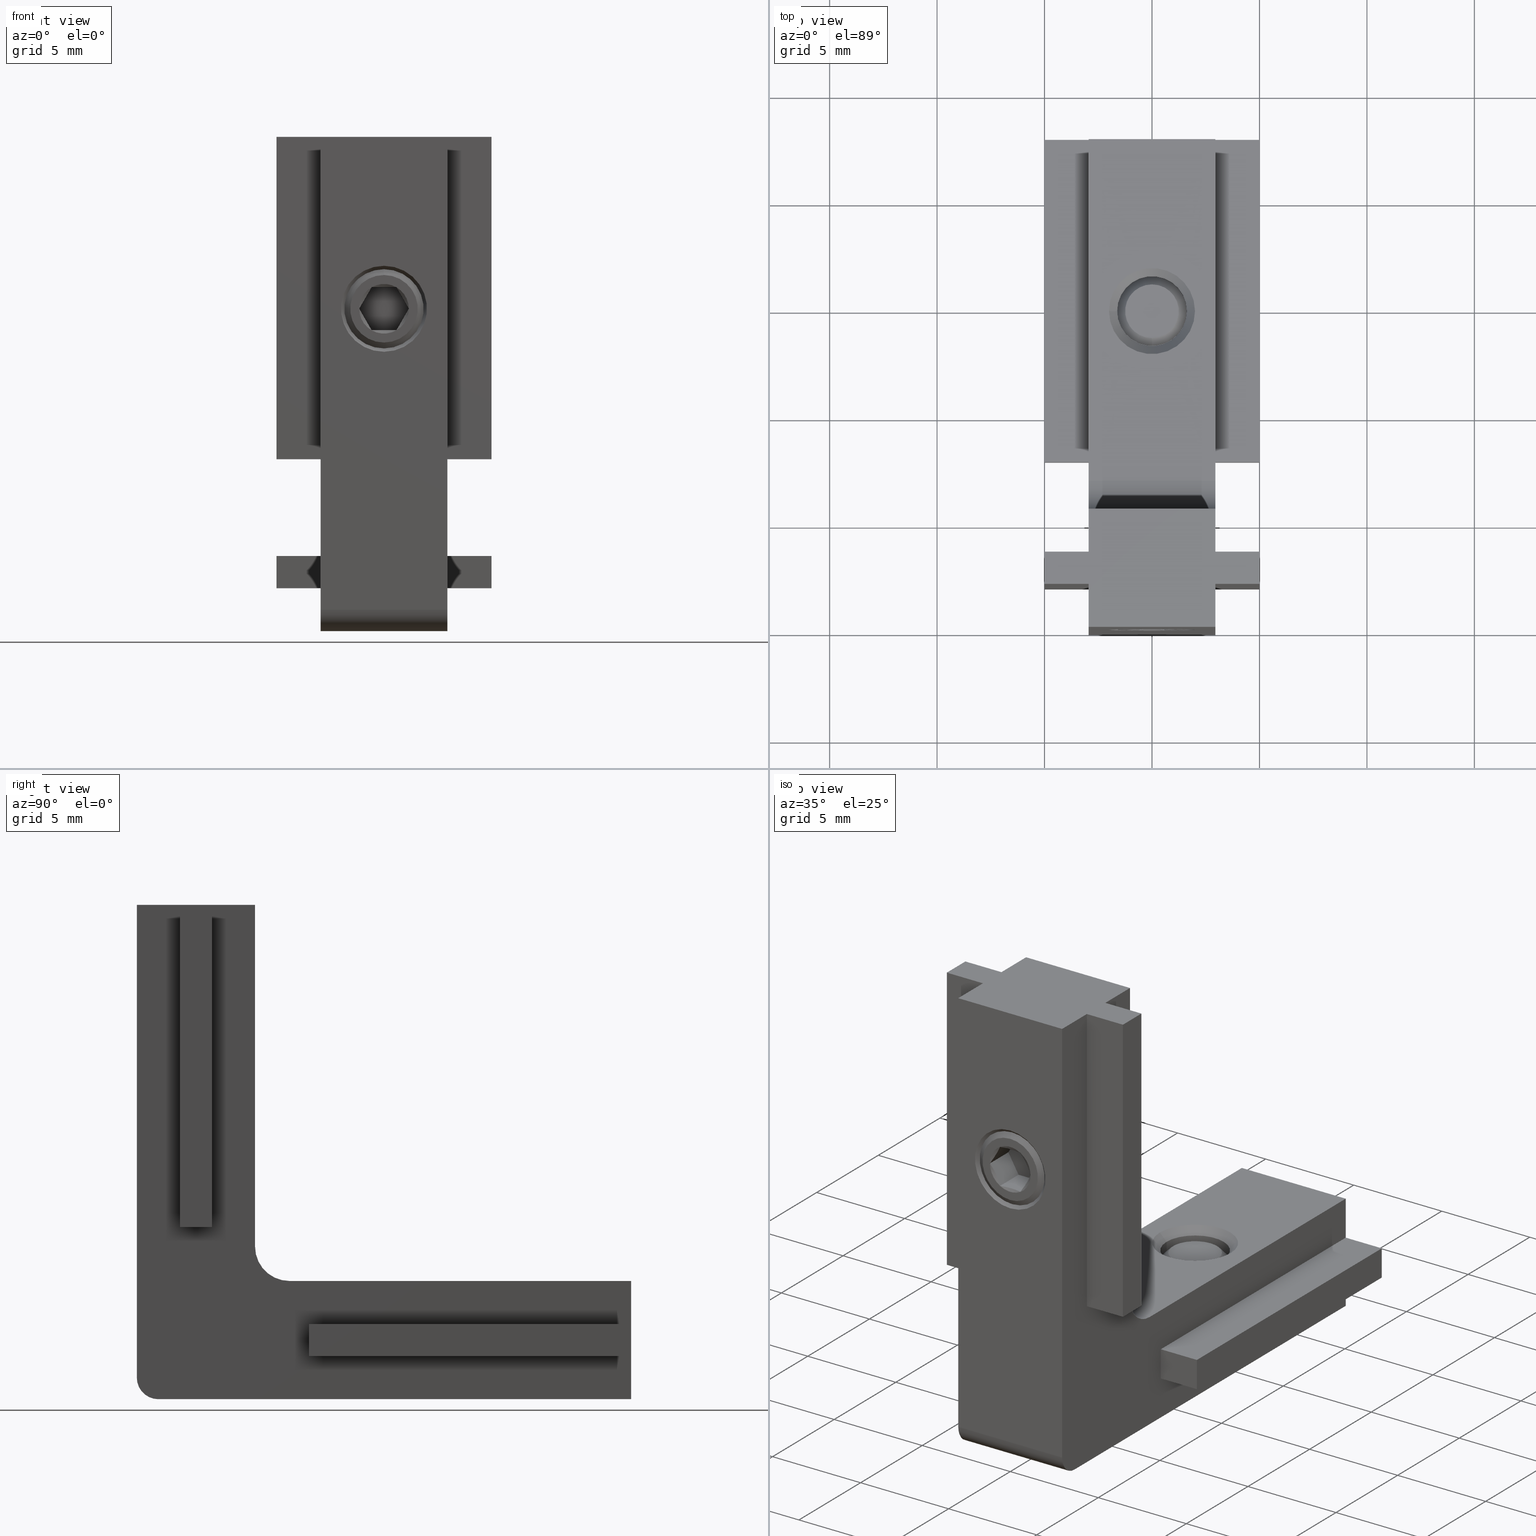
[diagram: canonical four-view strip — front | top / right | iso, engineering-drawing reading convention]
A machine part, canonical four-view strip (front | top / right | iso — engineering-drawing reading convention). The complete STEP part file that produces these views, byte-faithful:
ISO-10303-21;
HEADER;
/* Generated by software containing ST-Developer
 * from STEP Tools, Inc. (www.steptools.com) 
 */
/* OPTION: using custom renumber hook */

FILE_DESCRIPTION(
/* description */ ('STEP AP214'),
/* implementation_level */ '2;1');

FILE_NAME(
/* name */ 'HBLBS5',
/* time_stamp */ '2024-09-27T21:37:56+02:00',
/* author */ ('License CC BY-ND 4.0'),
/* organization */ ('CADENAS'),
/* preprocessor_version */ 'ST-DEVELOPER v19.3',
/* originating_system */ 'PARTsolutions',
/* authorisation */ '  ');

FILE_SCHEMA (('AUTOMOTIVE_DESIGN {1 0 10303 214 3 1 1}'));
ENDSEC;

DATA;
#10=PROPERTY_DEFINITION_REPRESENTATION(#14,#12);
#11=PROPERTY_DEFINITION_REPRESENTATION(#15,#13);
#12=REPRESENTATION('',(#16),#1432);
#13=REPRESENTATION('',(#17),#1432);
#14=PROPERTY_DEFINITION('pmi validation property','',#1441);
#15=PROPERTY_DEFINITION('pmi validation property','',#1441);
#16=VALUE_REPRESENTATION_ITEM('number of annotations',COUNT_MEASURE(0.));
#17=VALUE_REPRESENTATION_ITEM('number of views',COUNT_MEASURE(0.));
#18=B_SPLINE_CURVE_WITH_KNOTS('',3,(#1350,#1351,#1352,#1353),
 .UNSPECIFIED.,.F.,.F.,(4,4),(2.38077328936364E-7,0.00116642939916604),
 .UNSPECIFIED.);
#19=B_SPLINE_CURVE_WITH_KNOTS('',3,(#1358,#1359,#1360,#1361),
 .UNSPECIFIED.,.F.,.F.,(4,4),(2.3807732893654E-7,0.00116642939916604),
 .UNSPECIFIED.);
#20=B_SPLINE_CURVE_WITH_KNOTS('',3,(#1365,#1366,#1367,#1368),
 .UNSPECIFIED.,.F.,.F.,(4,4),(0.00145475060282589,0.00263050799952108),
 .UNSPECIFIED.);
#21=B_SPLINE_CURVE_WITH_KNOTS('',3,(#1372,#1373,#1374,#1375),
 .UNSPECIFIED.,.F.,.F.,(4,4),(2.3807732893654E-7,0.00116642939916604),
 .UNSPECIFIED.);
#22=B_SPLINE_CURVE_WITH_KNOTS('',3,(#1379,#1380,#1381,#1382),
 .UNSPECIFIED.,.F.,.F.,(4,4),(2.38077328936364E-7,0.00116642939916604),
 .UNSPECIFIED.);
#23=B_SPLINE_CURVE_WITH_KNOTS('',3,(#1386,#1387,#1388,#1389),
 .UNSPECIFIED.,.F.,.F.,(4,4),(0.00145475060282589,0.00263050799952108),
 .UNSPECIFIED.);
#24=CONTEXT_DEPENDENT_SHAPE_REPRESENTATION(#30,#1443);
#25=CONTEXT_DEPENDENT_SHAPE_REPRESENTATION(#31,#1445);
#26=CONTEXT_DEPENDENT_SHAPE_REPRESENTATION(#32,#1446);
#27=NEXT_ASSEMBLY_USAGE_OCCURRENCE('NAUO1','HBLBS5b','HBLBS5b',#1447,#1448,
'');
#28=NEXT_ASSEMBLY_USAGE_OCCURRENCE('NAUO2',
'Hexagon socket set screw with flat point DIN 913 - M4x5',
'Hexagon socket set screw with flat point DIN 913 - M4x5',#1447,#1449,
'');
#29=NEXT_ASSEMBLY_USAGE_OCCURRENCE('NAUO3',
'Hexagon socket set screw with flat point DIN 913 - M4x5',
'Hexagon socket set screw with flat point DIN 913 - M4x5',#1447,#1449,
'');
#30=(
REPRESENTATION_RELATIONSHIP(' ',' ',#869,#868)
REPRESENTATION_RELATIONSHIP_WITH_TRANSFORMATION(#33)
SHAPE_REPRESENTATION_RELATIONSHIP()
);
#31=(
REPRESENTATION_RELATIONSHIP(' ',' ',#870,#868)
REPRESENTATION_RELATIONSHIP_WITH_TRANSFORMATION(#34)
SHAPE_REPRESENTATION_RELATIONSHIP()
);
#32=(
REPRESENTATION_RELATIONSHIP(' ',' ',#870,#868)
REPRESENTATION_RELATIONSHIP_WITH_TRANSFORMATION(#35)
SHAPE_REPRESENTATION_RELATIONSHIP()
);
#33=ITEM_DEFINED_TRANSFORMATION(' ',' ',#871,#916);
#34=ITEM_DEFINED_TRANSFORMATION(' ',' ',#871,#945);
#35=ITEM_DEFINED_TRANSFORMATION(' ',' ',#871,#946);
#36=SHAPE_REPRESENTATION_RELATIONSHIP('','',#869,#38);
#37=SHAPE_REPRESENTATION_RELATIONSHIP('','',#870,#39);
#38=ADVANCED_BREP_SHAPE_REPRESENTATION('',(#863),#1433);
#39=ADVANCED_BREP_SHAPE_REPRESENTATION('',(#864),#1434);
#40=CYLINDRICAL_SURFACE('',#906,1.621);
#41=CYLINDRICAL_SURFACE('',#911,1.62099999999999);
#42=CYLINDRICAL_SURFACE('',#914,1.6);
#43=CYLINDRICAL_SURFACE('',#915,1.);
#44=CYLINDRICAL_SURFACE('',#933,2.);
#45=CONICAL_SURFACE('',#904,2.,0.785398163397438);
#46=CONICAL_SURFACE('',#908,1.621,0.785398163397457);
#47=CONICAL_SURFACE('',#909,2.,0.785398163397457);
#48=CONICAL_SURFACE('',#913,1.62099999999999,0.785398163397456);
#49=CONICAL_SURFACE('',#917,1.15470053837925,1.0471975511966);
#50=CONICAL_SURFACE('',#919,1.15470053837925,1.0471975511966);
#51=CONICAL_SURFACE('',#921,1.15470053837925,1.0471975511966);
#52=CONICAL_SURFACE('',#923,1.15470053837925,1.0471975511966);
#53=CONICAL_SURFACE('',#925,1.15470053837925,1.0471975511966);
#54=CONICAL_SURFACE('',#927,1.15470053837925,1.0471975511966);
#55=CONICAL_SURFACE('',#931,1.25,0.785398163397449);
#56=CONICAL_SURFACE('',#935,2.,1.0471975511966);
#57=LINE('',#1183,#137);
#58=LINE('',#1186,#138);
#59=LINE('',#1188,#139);
#60=LINE('',#1190,#140);
#61=LINE('',#1194,#141);
#62=LINE('',#1197,#142);
#63=LINE('',#1199,#143);
#64=LINE('',#1201,#144);
#65=LINE('',#1205,#145);
#66=LINE('',#1207,#146);
#67=LINE('',#1209,#147);
#68=LINE('',#1211,#148);
#69=LINE('',#1213,#149);
#70=LINE('',#1215,#150);
#71=LINE('',#1218,#151);
#72=LINE('',#1220,#152);
#73=LINE('',#1222,#153);
#74=LINE('',#1224,#154);
#75=LINE('',#1226,#155);
#76=LINE('',#1228,#156);
#77=LINE('',#1232,#157);
#78=LINE('',#1234,#158);
#79=LINE('',#1236,#159);
#80=LINE('',#1239,#160);
#81=LINE('',#1241,#161);
#82=LINE('',#1243,#162);
#83=LINE('',#1245,#163);
#84=LINE('',#1247,#164);
#85=LINE('',#1249,#165);
#86=LINE('',#1252,#166);
#87=LINE('',#1254,#167);
#88=LINE('',#1256,#168);
#89=LINE('',#1258,#169);
#90=LINE('',#1260,#170);
#91=LINE('',#1262,#171);
#92=LINE('',#1264,#172);
#93=LINE('',#1266,#173);
#94=LINE('',#1267,#174);
#95=LINE('',#1269,#175);
#96=LINE('',#1271,#176);
#97=LINE('',#1273,#177);
#98=LINE('',#1275,#178);
#99=LINE('',#1277,#179);
#100=LINE('',#1279,#180);
#101=LINE('',#1280,#181);
#102=LINE('',#1284,#182);
#103=LINE('',#1286,#183);
#104=LINE('',#1288,#184);
#105=LINE('',#1290,#185);
#106=LINE('',#1292,#186);
#107=LINE('',#1297,#187);
#108=LINE('',#1298,#188);
#109=LINE('',#1300,#189);
#110=LINE('',#1302,#190);
#111=LINE('',#1304,#191);
#112=LINE('',#1305,#192);
#113=LINE('',#1307,#193);
#114=LINE('',#1309,#194);
#115=LINE('',#1311,#195);
#116=LINE('',#1313,#196);
#117=LINE('',#1315,#197);
#118=LINE('',#1317,#198);
#119=LINE('',#1318,#199);
#120=LINE('',#1322,#200);
#121=LINE('',#1324,#201);
#122=LINE('',#1326,#202);
#123=LINE('',#1328,#203);
#124=LINE('',#1330,#204);
#125=LINE('',#1405,#205);
#126=LINE('',#1407,#206);
#127=LINE('',#1409,#207);
#128=LINE('',#1411,#208);
#129=LINE('',#1413,#209);
#130=LINE('',#1415,#210);
#131=LINE('',#1417,#211);
#132=LINE('',#1419,#212);
#133=LINE('',#1421,#213);
#134=LINE('',#1423,#214);
#135=LINE('',#1425,#215);
#136=LINE('',#1427,#216);
#137=VECTOR('',#953,1000.);
#138=VECTOR('',#954,1000.);
#139=VECTOR('',#955,1000.);
#140=VECTOR('',#956,1000.);
#141=VECTOR('',#961,1000.);
#142=VECTOR('',#962,1000.);
#143=VECTOR('',#963,1000.);
#144=VECTOR('',#964,1000.);
#145=VECTOR('',#969,1000.);
#146=VECTOR('',#970,1000.);
#147=VECTOR('',#971,1000.);
#148=VECTOR('',#972,1000.);
#149=VECTOR('',#973,1000.);
#150=VECTOR('',#974,1000.);
#151=VECTOR('',#977,1000.);
#152=VECTOR('',#978,1000.);
#153=VECTOR('',#979,1000.);
#154=VECTOR('',#980,1000.);
#155=VECTOR('',#981,1000.);
#156=VECTOR('',#982,1000.);
#157=VECTOR('',#987,1000.);
#158=VECTOR('',#988,1000.);
#159=VECTOR('',#989,1000.);
#160=VECTOR('',#994,1000.);
#161=VECTOR('',#995,1000.);
#162=VECTOR('',#996,1000.);
#163=VECTOR('',#997,1000.);
#164=VECTOR('',#998,1000.);
#165=VECTOR('',#999,1000.);
#166=VECTOR('',#1002,1000.);
#167=VECTOR('',#1003,1000.);
#168=VECTOR('',#1004,1000.);
#169=VECTOR('',#1005,1000.);
#170=VECTOR('',#1006,1000.);
#171=VECTOR('',#1009,1000.);
#172=VECTOR('',#1010,1000.);
#173=VECTOR('',#1011,1000.);
#174=VECTOR('',#1012,1000.);
#175=VECTOR('',#1013,1000.);
#176=VECTOR('',#1014,1000.);
#177=VECTOR('',#1017,1000.);
#178=VECTOR('',#1018,1000.);
#179=VECTOR('',#1019,1000.);
#180=VECTOR('',#1022,1000.);
#181=VECTOR('',#1023,1000.);
#182=VECTOR('',#1030,1000.);
#183=VECTOR('',#1031,1000.);
#184=VECTOR('',#1032,1000.);
#185=VECTOR('',#1035,1000.);
#186=VECTOR('',#1038,1000.);
#187=VECTOR('',#1045,1000.);
#188=VECTOR('',#1046,1000.);
#189=VECTOR('',#1049,1000.);
#190=VECTOR('',#1050,1000.);
#191=VECTOR('',#1051,1000.);
#192=VECTOR('',#1052,1000.);
#193=VECTOR('',#1053,1000.);
#194=VECTOR('',#1054,1000.);
#195=VECTOR('',#1057,1000.);
#196=VECTOR('',#1058,1000.);
#197=VECTOR('',#1059,1000.);
#198=VECTOR('',#1062,1000.);
#199=VECTOR('',#1063,1000.);
#200=VECTOR('',#1070,1000.);
#201=VECTOR('',#1071,1000.);
#202=VECTOR('',#1072,1000.);
#203=VECTOR('',#1075,1000.);
#204=VECTOR('',#1078,1000.);
#205=VECTOR('',#1151,1000.);
#206=VECTOR('',#1152,1000.);
#207=VECTOR('',#1153,1000.);
#208=VECTOR('',#1156,1000.);
#209=VECTOR('',#1157,1000.);
#210=VECTOR('',#1160,1000.);
#211=VECTOR('',#1161,1000.);
#212=VECTOR('',#1164,1000.);
#213=VECTOR('',#1165,1000.);
#214=VECTOR('',#1168,1000.);
#215=VECTOR('',#1169,1000.);
#216=VECTOR('',#1172,1000.);
#217=ORIENTED_EDGE('',*,*,#433,.F.);
#218=ORIENTED_EDGE('',*,*,#434,.T.);
#219=ORIENTED_EDGE('',*,*,#435,.F.);
#220=ORIENTED_EDGE('',*,*,#436,.F.);
#221=ORIENTED_EDGE('',*,*,#437,.F.);
#222=ORIENTED_EDGE('',*,*,#438,.F.);
#223=ORIENTED_EDGE('',*,*,#439,.T.);
#224=ORIENTED_EDGE('',*,*,#440,.F.);
#225=ORIENTED_EDGE('',*,*,#441,.F.);
#226=ORIENTED_EDGE('',*,*,#442,.T.);
#227=ORIENTED_EDGE('',*,*,#435,.T.);
#228=ORIENTED_EDGE('',*,*,#443,.F.);
#229=ORIENTED_EDGE('',*,*,#444,.F.);
#230=ORIENTED_EDGE('',*,*,#445,.F.);
#231=ORIENTED_EDGE('',*,*,#446,.T.);
#232=ORIENTED_EDGE('',*,*,#447,.F.);
#233=ORIENTED_EDGE('',*,*,#448,.T.);
#234=ORIENTED_EDGE('',*,*,#449,.F.);
#235=ORIENTED_EDGE('',*,*,#440,.T.);
#236=ORIENTED_EDGE('',*,*,#450,.T.);
#237=ORIENTED_EDGE('',*,*,#451,.F.);
#238=ORIENTED_EDGE('',*,*,#452,.F.);
#239=ORIENTED_EDGE('',*,*,#453,.T.);
#240=ORIENTED_EDGE('',*,*,#454,.F.);
#241=ORIENTED_EDGE('',*,*,#455,.T.);
#242=ORIENTED_EDGE('',*,*,#456,.F.);
#243=ORIENTED_EDGE('',*,*,#457,.T.);
#244=ORIENTED_EDGE('',*,*,#444,.T.);
#245=ORIENTED_EDGE('',*,*,#458,.F.);
#246=ORIENTED_EDGE('',*,*,#459,.F.);
#247=ORIENTED_EDGE('',*,*,#460,.F.);
#248=ORIENTED_EDGE('',*,*,#459,.T.);
#249=ORIENTED_EDGE('',*,*,#461,.T.);
#250=ORIENTED_EDGE('',*,*,#437,.T.);
#251=ORIENTED_EDGE('',*,*,#462,.F.);
#252=ORIENTED_EDGE('',*,*,#463,.T.);
#253=ORIENTED_EDGE('',*,*,#464,.F.);
#254=ORIENTED_EDGE('',*,*,#465,.T.);
#255=ORIENTED_EDGE('',*,*,#466,.F.);
#256=ORIENTED_EDGE('',*,*,#467,.T.);
#257=ORIENTED_EDGE('',*,*,#468,.F.);
#258=ORIENTED_EDGE('',*,*,#442,.F.);
#259=ORIENTED_EDGE('',*,*,#469,.F.);
#260=ORIENTED_EDGE('',*,*,#470,.T.);
#261=ORIENTED_EDGE('',*,*,#471,.F.);
#262=ORIENTED_EDGE('',*,*,#472,.T.);
#263=ORIENTED_EDGE('',*,*,#473,.F.);
#264=ORIENTED_EDGE('',*,*,#449,.T.);
#265=ORIENTED_EDGE('',*,*,#474,.T.);
#266=ORIENTED_EDGE('',*,*,#475,.T.);
#267=ORIENTED_EDGE('',*,*,#476,.T.);
#268=ORIENTED_EDGE('',*,*,#445,.T.);
#269=ORIENTED_EDGE('',*,*,#460,.T.);
#270=ORIENTED_EDGE('',*,*,#473,.T.);
#271=ORIENTED_EDGE('',*,*,#477,.T.);
#272=ORIENTED_EDGE('',*,*,#478,.T.);
#273=ORIENTED_EDGE('',*,*,#479,.T.);
#274=ORIENTED_EDGE('',*,*,#469,.T.);
#275=ORIENTED_EDGE('',*,*,#441,.T.);
#276=ORIENTED_EDGE('',*,*,#478,.F.);
#277=ORIENTED_EDGE('',*,*,#480,.F.);
#278=ORIENTED_EDGE('',*,*,#481,.T.);
#279=ORIENTED_EDGE('',*,*,#482,.T.);
#280=ORIENTED_EDGE('',*,*,#483,.F.);
#281=ORIENTED_EDGE('',*,*,#471,.T.);
#282=ORIENTED_EDGE('',*,*,#484,.F.);
#283=ORIENTED_EDGE('',*,*,#481,.F.);
#284=ORIENTED_EDGE('',*,*,#470,.F.);
#285=ORIENTED_EDGE('',*,*,#479,.F.);
#286=ORIENTED_EDGE('',*,*,#482,.F.);
#287=ORIENTED_EDGE('',*,*,#484,.T.);
#288=ORIENTED_EDGE('',*,*,#472,.F.);
#289=ORIENTED_EDGE('',*,*,#483,.T.);
#290=ORIENTED_EDGE('',*,*,#480,.T.);
#291=ORIENTED_EDGE('',*,*,#477,.F.);
#292=ORIENTED_EDGE('',*,*,#485,.F.);
#293=ORIENTED_EDGE('',*,*,#447,.T.);
#294=ORIENTED_EDGE('',*,*,#486,.F.);
#295=ORIENTED_EDGE('',*,*,#487,.F.);
#296=ORIENTED_EDGE('',*,*,#446,.F.);
#297=ORIENTED_EDGE('',*,*,#476,.F.);
#298=ORIENTED_EDGE('',*,*,#488,.F.);
#299=ORIENTED_EDGE('',*,*,#486,.T.);
#300=ORIENTED_EDGE('',*,*,#448,.F.);
#301=ORIENTED_EDGE('',*,*,#485,.T.);
#302=ORIENTED_EDGE('',*,*,#489,.T.);
#303=ORIENTED_EDGE('',*,*,#474,.F.);
#304=ORIENTED_EDGE('',*,*,#475,.F.);
#305=ORIENTED_EDGE('',*,*,#489,.F.);
#306=ORIENTED_EDGE('',*,*,#487,.T.);
#307=ORIENTED_EDGE('',*,*,#488,.T.);
#308=ORIENTED_EDGE('',*,*,#490,.T.);
#309=ORIENTED_EDGE('',*,*,#451,.T.);
#310=ORIENTED_EDGE('',*,*,#491,.F.);
#311=ORIENTED_EDGE('',*,*,#467,.F.);
#312=ORIENTED_EDGE('',*,*,#492,.F.);
#313=ORIENTED_EDGE('',*,*,#456,.T.);
#314=ORIENTED_EDGE('',*,*,#493,.T.);
#315=ORIENTED_EDGE('',*,*,#494,.T.);
#316=ORIENTED_EDGE('',*,*,#495,.T.);
#317=ORIENTED_EDGE('',*,*,#452,.T.);
#318=ORIENTED_EDGE('',*,*,#492,.T.);
#319=ORIENTED_EDGE('',*,*,#466,.T.);
#320=ORIENTED_EDGE('',*,*,#496,.T.);
#321=ORIENTED_EDGE('',*,*,#497,.T.);
#322=ORIENTED_EDGE('',*,*,#498,.T.);
#323=ORIENTED_EDGE('',*,*,#462,.T.);
#324=ORIENTED_EDGE('',*,*,#436,.T.);
#325=ORIENTED_EDGE('',*,*,#497,.F.);
#326=ORIENTED_EDGE('',*,*,#499,.F.);
#327=ORIENTED_EDGE('',*,*,#500,.T.);
#328=ORIENTED_EDGE('',*,*,#501,.T.);
#329=ORIENTED_EDGE('',*,*,#502,.F.);
#330=ORIENTED_EDGE('',*,*,#464,.T.);
#331=ORIENTED_EDGE('',*,*,#503,.F.);
#332=ORIENTED_EDGE('',*,*,#500,.F.);
#333=ORIENTED_EDGE('',*,*,#463,.F.);
#334=ORIENTED_EDGE('',*,*,#498,.F.);
#335=ORIENTED_EDGE('',*,*,#501,.F.);
#336=ORIENTED_EDGE('',*,*,#503,.T.);
#337=ORIENTED_EDGE('',*,*,#465,.F.);
#338=ORIENTED_EDGE('',*,*,#502,.T.);
#339=ORIENTED_EDGE('',*,*,#499,.T.);
#340=ORIENTED_EDGE('',*,*,#496,.F.);
#341=ORIENTED_EDGE('',*,*,#504,.F.);
#342=ORIENTED_EDGE('',*,*,#454,.T.);
#343=ORIENTED_EDGE('',*,*,#505,.F.);
#344=ORIENTED_EDGE('',*,*,#506,.F.);
#345=ORIENTED_EDGE('',*,*,#453,.F.);
#346=ORIENTED_EDGE('',*,*,#495,.F.);
#347=ORIENTED_EDGE('',*,*,#507,.F.);
#348=ORIENTED_EDGE('',*,*,#505,.T.);
#349=ORIENTED_EDGE('',*,*,#455,.F.);
#350=ORIENTED_EDGE('',*,*,#504,.T.);
#351=ORIENTED_EDGE('',*,*,#508,.T.);
#352=ORIENTED_EDGE('',*,*,#493,.F.);
#353=ORIENTED_EDGE('',*,*,#494,.F.);
#354=ORIENTED_EDGE('',*,*,#508,.F.);
#355=ORIENTED_EDGE('',*,*,#506,.T.);
#356=ORIENTED_EDGE('',*,*,#507,.T.);
#357=ORIENTED_EDGE('',*,*,#509,.T.);
#358=ORIENTED_EDGE('',*,*,#457,.F.);
#359=ORIENTED_EDGE('',*,*,#510,.T.);
#360=ORIENTED_EDGE('',*,*,#509,.F.);
#361=ORIENTED_EDGE('',*,*,#438,.T.);
#362=ORIENTED_EDGE('',*,*,#510,.F.);
#363=ORIENTED_EDGE('',*,*,#511,.T.);
#364=ORIENTED_EDGE('',*,*,#490,.F.);
#365=ORIENTED_EDGE('',*,*,#512,.T.);
#366=ORIENTED_EDGE('',*,*,#511,.F.);
#367=ORIENTED_EDGE('',*,*,#433,.T.);
#368=ORIENTED_EDGE('',*,*,#512,.F.);
#369=ORIENTED_EDGE('',*,*,#450,.F.);
#370=ORIENTED_EDGE('',*,*,#439,.F.);
#371=ORIENTED_EDGE('',*,*,#468,.T.);
#372=ORIENTED_EDGE('',*,*,#491,.T.);
#373=ORIENTED_EDGE('',*,*,#443,.T.);
#374=ORIENTED_EDGE('',*,*,#434,.F.);
#375=ORIENTED_EDGE('',*,*,#461,.F.);
#376=ORIENTED_EDGE('',*,*,#458,.T.);
#377=ORIENTED_EDGE('',*,*,#513,.F.);
#378=ORIENTED_EDGE('',*,*,#514,.T.);
#379=ORIENTED_EDGE('',*,*,#515,.F.);
#380=ORIENTED_EDGE('',*,*,#516,.T.);
#381=ORIENTED_EDGE('',*,*,#517,.F.);
#382=ORIENTED_EDGE('',*,*,#518,.T.);
#383=ORIENTED_EDGE('',*,*,#519,.F.);
#384=ORIENTED_EDGE('',*,*,#520,.T.);
#385=ORIENTED_EDGE('',*,*,#521,.F.);
#386=ORIENTED_EDGE('',*,*,#522,.T.);
#387=ORIENTED_EDGE('',*,*,#523,.F.);
#388=ORIENTED_EDGE('',*,*,#524,.T.);
#389=ORIENTED_EDGE('',*,*,#525,.F.);
#390=ORIENTED_EDGE('',*,*,#526,.F.);
#391=ORIENTED_EDGE('',*,*,#525,.T.);
#392=ORIENTED_EDGE('',*,*,#527,.F.);
#393=ORIENTED_EDGE('',*,*,#526,.T.);
#394=ORIENTED_EDGE('',*,*,#528,.F.);
#395=ORIENTED_EDGE('',*,*,#527,.T.);
#396=ORIENTED_EDGE('',*,*,#518,.F.);
#397=ORIENTED_EDGE('',*,*,#520,.F.);
#398=ORIENTED_EDGE('',*,*,#522,.F.);
#399=ORIENTED_EDGE('',*,*,#524,.F.);
#400=ORIENTED_EDGE('',*,*,#516,.F.);
#401=ORIENTED_EDGE('',*,*,#514,.F.);
#402=ORIENTED_EDGE('',*,*,#528,.T.);
#403=ORIENTED_EDGE('',*,*,#515,.T.);
#404=ORIENTED_EDGE('',*,*,#529,.F.);
#405=ORIENTED_EDGE('',*,*,#530,.T.);
#406=ORIENTED_EDGE('',*,*,#531,.T.);
#407=ORIENTED_EDGE('',*,*,#513,.T.);
#408=ORIENTED_EDGE('',*,*,#531,.F.);
#409=ORIENTED_EDGE('',*,*,#532,.T.);
#410=ORIENTED_EDGE('',*,*,#533,.T.);
#411=ORIENTED_EDGE('',*,*,#517,.T.);
#412=ORIENTED_EDGE('',*,*,#533,.F.);
#413=ORIENTED_EDGE('',*,*,#534,.T.);
#414=ORIENTED_EDGE('',*,*,#535,.T.);
#415=ORIENTED_EDGE('',*,*,#519,.T.);
#416=ORIENTED_EDGE('',*,*,#535,.F.);
#417=ORIENTED_EDGE('',*,*,#536,.T.);
#418=ORIENTED_EDGE('',*,*,#537,.T.);
#419=ORIENTED_EDGE('',*,*,#521,.T.);
#420=ORIENTED_EDGE('',*,*,#537,.F.);
#421=ORIENTED_EDGE('',*,*,#538,.T.);
#422=ORIENTED_EDGE('',*,*,#539,.T.);
#423=ORIENTED_EDGE('',*,*,#523,.T.);
#424=ORIENTED_EDGE('',*,*,#539,.F.);
#425=ORIENTED_EDGE('',*,*,#540,.T.);
#426=ORIENTED_EDGE('',*,*,#529,.T.);
#427=ORIENTED_EDGE('',*,*,#530,.F.);
#428=ORIENTED_EDGE('',*,*,#540,.F.);
#429=ORIENTED_EDGE('',*,*,#538,.F.);
#430=ORIENTED_EDGE('',*,*,#536,.F.);
#431=ORIENTED_EDGE('',*,*,#534,.F.);
#432=ORIENTED_EDGE('',*,*,#532,.F.);
#433=EDGE_CURVE('',#541,#541,#613,.T.);
#434=EDGE_CURVE('',#542,#543,#57,.T.);
#435=EDGE_CURVE('',#544,#543,#58,.T.);
#436=EDGE_CURVE('',#545,#544,#59,.T.);
#437=EDGE_CURVE('',#542,#545,#60,.T.);
#438=EDGE_CURVE('',#546,#546,#614,.T.);
#439=EDGE_CURVE('',#547,#548,#61,.T.);
#440=EDGE_CURVE('',#549,#548,#62,.T.);
#441=EDGE_CURVE('',#550,#549,#63,.T.);
#442=EDGE_CURVE('',#550,#547,#64,.T.);
#443=EDGE_CURVE('',#551,#543,#615,.T.);
#444=EDGE_CURVE('',#552,#551,#65,.T.);
#445=EDGE_CURVE('',#553,#552,#66,.T.);
#446=EDGE_CURVE('',#553,#554,#67,.T.);
#447=EDGE_CURVE('',#555,#554,#68,.T.);
#448=EDGE_CURVE('',#555,#556,#69,.T.);
#449=EDGE_CURVE('',#549,#556,#70,.T.);
#450=EDGE_CURVE('',#548,#557,#616,.T.);
#451=EDGE_CURVE('',#558,#557,#71,.T.);
#452=EDGE_CURVE('',#559,#558,#72,.T.);
#453=EDGE_CURVE('',#559,#560,#73,.T.);
#454=EDGE_CURVE('',#561,#560,#74,.T.);
#455=EDGE_CURVE('',#561,#562,#75,.T.);
#456=EDGE_CURVE('',#544,#562,#76,.T.);
#457=EDGE_CURVE('',#563,#563,#617,.T.);
#458=EDGE_CURVE('',#564,#551,#77,.T.);
#459=EDGE_CURVE('',#565,#564,#78,.T.);
#460=EDGE_CURVE('',#552,#565,#79,.T.);
#461=EDGE_CURVE('',#564,#542,#618,.T.);
#462=EDGE_CURVE('',#566,#545,#80,.T.);
#463=EDGE_CURVE('',#566,#567,#81,.T.);
#464=EDGE_CURVE('',#568,#567,#82,.T.);
#465=EDGE_CURVE('',#568,#569,#83,.T.);
#466=EDGE_CURVE('',#570,#569,#84,.T.);
#467=EDGE_CURVE('',#570,#571,#85,.T.);
#468=EDGE_CURVE('',#547,#571,#619,.T.);
#469=EDGE_CURVE('',#572,#550,#86,.T.);
#470=EDGE_CURVE('',#572,#573,#87,.T.);
#471=EDGE_CURVE('',#574,#573,#88,.T.);
#472=EDGE_CURVE('',#574,#575,#89,.T.);
#473=EDGE_CURVE('',#565,#575,#90,.T.);
#474=EDGE_CURVE('',#556,#576,#91,.T.);
#475=EDGE_CURVE('',#576,#577,#92,.T.);
#476=EDGE_CURVE('',#577,#553,#93,.T.);
#477=EDGE_CURVE('',#575,#578,#94,.T.);
#478=EDGE_CURVE('',#578,#579,#95,.T.);
#479=EDGE_CURVE('',#579,#572,#96,.T.);
#480=EDGE_CURVE('',#580,#578,#97,.T.);
#481=EDGE_CURVE('',#580,#581,#98,.T.);
#482=EDGE_CURVE('',#581,#579,#99,.T.);
#483=EDGE_CURVE('',#574,#580,#100,.T.);
#484=EDGE_CURVE('',#581,#573,#101,.T.);
#485=EDGE_CURVE('',#555,#582,#102,.T.);
#486=EDGE_CURVE('',#583,#554,#103,.T.);
#487=EDGE_CURVE('',#582,#583,#104,.T.);
#488=EDGE_CURVE('',#583,#577,#105,.T.);
#489=EDGE_CURVE('',#582,#576,#106,.T.);
#490=EDGE_CURVE('',#584,#584,#620,.T.);
#491=EDGE_CURVE('',#571,#557,#107,.T.);
#492=EDGE_CURVE('',#558,#570,#108,.T.);
#493=EDGE_CURVE('',#562,#585,#109,.T.);
#494=EDGE_CURVE('',#585,#586,#110,.T.);
#495=EDGE_CURVE('',#586,#559,#111,.T.);
#496=EDGE_CURVE('',#569,#587,#112,.T.);
#497=EDGE_CURVE('',#587,#588,#113,.T.);
#498=EDGE_CURVE('',#588,#566,#114,.T.);
#499=EDGE_CURVE('',#589,#587,#115,.T.);
#500=EDGE_CURVE('',#589,#590,#116,.T.);
#501=EDGE_CURVE('',#590,#588,#117,.T.);
#502=EDGE_CURVE('',#568,#589,#118,.T.);
#503=EDGE_CURVE('',#590,#567,#119,.T.);
#504=EDGE_CURVE('',#561,#591,#120,.T.);
#505=EDGE_CURVE('',#592,#560,#121,.T.);
#506=EDGE_CURVE('',#591,#592,#122,.T.);
#507=EDGE_CURVE('',#592,#586,#123,.T.);
#508=EDGE_CURVE('',#591,#585,#124,.T.);
#509=EDGE_CURVE('',#593,#593,#621,.T.);
#510=EDGE_CURVE('',#594,#594,#622,.T.);
#511=EDGE_CURVE('',#595,#595,#623,.T.);
#512=EDGE_CURVE('',#596,#596,#624,.T.);
#513=EDGE_CURVE('',#597,#598,#18,.T.);
#514=EDGE_CURVE('',#597,#598,#625,.T.);
#515=EDGE_CURVE('',#598,#599,#19,.T.);
#516=EDGE_CURVE('',#598,#599,#626,.T.);
#517=EDGE_CURVE('',#600,#597,#20,.T.);
#518=EDGE_CURVE('',#600,#597,#627,.T.);
#519=EDGE_CURVE('',#601,#600,#21,.T.);
#520=EDGE_CURVE('',#601,#600,#628,.T.);
#521=EDGE_CURVE('',#602,#601,#22,.T.);
#522=EDGE_CURVE('',#602,#601,#629,.T.);
#523=EDGE_CURVE('',#599,#602,#23,.T.);
#524=EDGE_CURVE('',#599,#602,#630,.T.);
#525=EDGE_CURVE('',#603,#603,#631,.T.);
#526=EDGE_CURVE('',#604,#604,#632,.T.);
#527=EDGE_CURVE('',#605,#605,#633,.T.);
#528=EDGE_CURVE('',#606,#606,#634,.T.);
#529=EDGE_CURVE('',#607,#599,#125,.T.);
#530=EDGE_CURVE('',#607,#608,#126,.T.);
#531=EDGE_CURVE('',#608,#598,#127,.T.);
#532=EDGE_CURVE('',#608,#609,#128,.T.);
#533=EDGE_CURVE('',#609,#597,#129,.T.);
#534=EDGE_CURVE('',#609,#610,#130,.T.);
#535=EDGE_CURVE('',#610,#600,#131,.T.);
#536=EDGE_CURVE('',#610,#611,#132,.T.);
#537=EDGE_CURVE('',#611,#601,#133,.T.);
#538=EDGE_CURVE('',#611,#612,#134,.T.);
#539=EDGE_CURVE('',#612,#602,#135,.T.);
#540=EDGE_CURVE('',#612,#607,#136,.T.);
#541=VERTEX_POINT('',#1182);
#542=VERTEX_POINT('',#1184);
#543=VERTEX_POINT('',#1185);
#544=VERTEX_POINT('',#1187);
#545=VERTEX_POINT('',#1189);
#546=VERTEX_POINT('',#1193);
#547=VERTEX_POINT('',#1195);
#548=VERTEX_POINT('',#1196);
#549=VERTEX_POINT('',#1198);
#550=VERTEX_POINT('',#1200);
#551=VERTEX_POINT('',#1204);
#552=VERTEX_POINT('',#1206);
#553=VERTEX_POINT('',#1208);
#554=VERTEX_POINT('',#1210);
#555=VERTEX_POINT('',#1212);
#556=VERTEX_POINT('',#1214);
#557=VERTEX_POINT('',#1217);
#558=VERTEX_POINT('',#1219);
#559=VERTEX_POINT('',#1221);
#560=VERTEX_POINT('',#1223);
#561=VERTEX_POINT('',#1225);
#562=VERTEX_POINT('',#1227);
#563=VERTEX_POINT('',#1231);
#564=VERTEX_POINT('',#1233);
#565=VERTEX_POINT('',#1235);
#566=VERTEX_POINT('',#1240);
#567=VERTEX_POINT('',#1242);
#568=VERTEX_POINT('',#1244);
#569=VERTEX_POINT('',#1246);
#570=VERTEX_POINT('',#1248);
#571=VERTEX_POINT('',#1250);
#572=VERTEX_POINT('',#1253);
#573=VERTEX_POINT('',#1255);
#574=VERTEX_POINT('',#1257);
#575=VERTEX_POINT('',#1259);
#576=VERTEX_POINT('',#1263);
#577=VERTEX_POINT('',#1265);
#578=VERTEX_POINT('',#1268);
#579=VERTEX_POINT('',#1270);
#580=VERTEX_POINT('',#1274);
#581=VERTEX_POINT('',#1276);
#582=VERTEX_POINT('',#1285);
#583=VERTEX_POINT('',#1287);
#584=VERTEX_POINT('',#1296);
#585=VERTEX_POINT('',#1301);
#586=VERTEX_POINT('',#1303);
#587=VERTEX_POINT('',#1306);
#588=VERTEX_POINT('',#1308);
#589=VERTEX_POINT('',#1312);
#590=VERTEX_POINT('',#1314);
#591=VERTEX_POINT('',#1323);
#592=VERTEX_POINT('',#1325);
#593=VERTEX_POINT('',#1334);
#594=VERTEX_POINT('',#1337);
#595=VERTEX_POINT('',#1341);
#596=VERTEX_POINT('',#1344);
#597=VERTEX_POINT('',#1354);
#598=VERTEX_POINT('',#1355);
#599=VERTEX_POINT('',#1362);
#600=VERTEX_POINT('',#1369);
#601=VERTEX_POINT('',#1376);
#602=VERTEX_POINT('',#1383);
#603=VERTEX_POINT('',#1393);
#604=VERTEX_POINT('',#1396);
#605=VERTEX_POINT('',#1399);
#606=VERTEX_POINT('',#1402);
#607=VERTEX_POINT('',#1406);
#608=VERTEX_POINT('',#1408);
#609=VERTEX_POINT('',#1412);
#610=VERTEX_POINT('',#1416);
#611=VERTEX_POINT('',#1420);
#612=VERTEX_POINT('',#1424);
#613=CIRCLE('',#873,2.);
#614=CIRCLE('',#875,2.);
#615=CIRCLE('',#877,1.);
#616=CIRCLE('',#878,1.6);
#617=CIRCLE('',#880,2.);
#618=CIRCLE('',#882,1.);
#619=CIRCLE('',#883,1.6);
#620=CIRCLE('',#894,2.);
#621=CIRCLE('',#905,1.621);
#622=CIRCLE('',#907,1.621);
#623=CIRCLE('',#910,1.62099999999999);
#624=CIRCLE('',#912,1.62099999999999);
#625=CIRCLE('',#918,1.15470053837925);
#626=CIRCLE('',#920,1.15470053837925);
#627=CIRCLE('',#922,1.15470053837925);
#628=CIRCLE('',#924,1.15470053837925);
#629=CIRCLE('',#926,1.15470053837925);
#630=CIRCLE('',#928,1.15470053837925);
#631=CIRCLE('',#930,1.25);
#632=CIRCLE('',#932,2.);
#633=CIRCLE('',#934,2.);
#634=CIRCLE('',#936,1.5705);
#635=EDGE_LOOP('',(#217));
#636=EDGE_LOOP('',(#218,#219,#220,#221));
#637=EDGE_LOOP('',(#222));
#638=EDGE_LOOP('',(#223,#224,#225,#226));
#639=EDGE_LOOP('',(#227,#228,#229,#230,#231,#232,#233,#234,#235,#236,#237,
#238,#239,#240,#241,#242));
#640=EDGE_LOOP('',(#243));
#641=EDGE_LOOP('',(#244,#245,#246,#247));
#642=EDGE_LOOP('',(#248,#249,#250,#251,#252,#253,#254,#255,#256,#257,#258,
#259,#260,#261,#262,#263));
#643=EDGE_LOOP('',(#264,#265,#266,#267,#268,#269,#270,#271,#272,#273,#274,
#275));
#644=EDGE_LOOP('',(#276,#277,#278,#279));
#645=EDGE_LOOP('',(#280,#281,#282,#283));
#646=EDGE_LOOP('',(#284,#285,#286,#287));
#647=EDGE_LOOP('',(#288,#289,#290,#291));
#648=EDGE_LOOP('',(#292,#293,#294,#295));
#649=EDGE_LOOP('',(#296,#297,#298,#299));
#650=EDGE_LOOP('',(#300,#301,#302,#303));
#651=EDGE_LOOP('',(#304,#305,#306,#307));
#652=EDGE_LOOP('',(#308));
#653=EDGE_LOOP('',(#309,#310,#311,#312));
#654=EDGE_LOOP('',(#313,#314,#315,#316,#317,#318,#319,#320,#321,#322,#323,
#324));
#655=EDGE_LOOP('',(#325,#326,#327,#328));
#656=EDGE_LOOP('',(#329,#330,#331,#332));
#657=EDGE_LOOP('',(#333,#334,#335,#336));
#658=EDGE_LOOP('',(#337,#338,#339,#340));
#659=EDGE_LOOP('',(#341,#342,#343,#344));
#660=EDGE_LOOP('',(#345,#346,#347,#348));
#661=EDGE_LOOP('',(#349,#350,#351,#352));
#662=EDGE_LOOP('',(#353,#354,#355,#356));
#663=EDGE_LOOP('',(#357));
#664=EDGE_LOOP('',(#358));
#665=EDGE_LOOP('',(#359));
#666=EDGE_LOOP('',(#360));
#667=EDGE_LOOP('',(#361));
#668=EDGE_LOOP('',(#362));
#669=EDGE_LOOP('',(#363));
#670=EDGE_LOOP('',(#364));
#671=EDGE_LOOP('',(#365));
#672=EDGE_LOOP('',(#366));
#673=EDGE_LOOP('',(#367));
#674=EDGE_LOOP('',(#368));
#675=EDGE_LOOP('',(#369,#370,#371,#372));
#676=EDGE_LOOP('',(#373,#374,#375,#376));
#677=EDGE_LOOP('',(#377,#378));
#678=EDGE_LOOP('',(#379,#380));
#679=EDGE_LOOP('',(#381,#382));
#680=EDGE_LOOP('',(#383,#384));
#681=EDGE_LOOP('',(#385,#386));
#682=EDGE_LOOP('',(#387,#388));
#683=EDGE_LOOP('',(#389));
#684=EDGE_LOOP('',(#390));
#685=EDGE_LOOP('',(#391));
#686=EDGE_LOOP('',(#392));
#687=EDGE_LOOP('',(#393));
#688=EDGE_LOOP('',(#394));
#689=EDGE_LOOP('',(#395));
#690=EDGE_LOOP('',(#396,#397,#398,#399,#400,#401));
#691=EDGE_LOOP('',(#402));
#692=EDGE_LOOP('',(#403,#404,#405,#406));
#693=EDGE_LOOP('',(#407,#408,#409,#410));
#694=EDGE_LOOP('',(#411,#412,#413,#414));
#695=EDGE_LOOP('',(#415,#416,#417,#418));
#696=EDGE_LOOP('',(#419,#420,#421,#422));
#697=EDGE_LOOP('',(#423,#424,#425,#426));
#698=EDGE_LOOP('',(#427,#428,#429,#430,#431,#432));
#699=FACE_BOUND('',#635,.T.);
#700=FACE_BOUND('',#636,.T.);
#701=FACE_BOUND('',#637,.T.);
#702=FACE_BOUND('',#638,.T.);
#703=FACE_BOUND('',#639,.T.);
#704=FACE_BOUND('',#640,.T.);
#705=FACE_BOUND('',#641,.T.);
#706=FACE_BOUND('',#642,.T.);
#707=FACE_BOUND('',#643,.T.);
#708=FACE_BOUND('',#644,.T.);
#709=FACE_BOUND('',#645,.T.);
#710=FACE_BOUND('',#646,.T.);
#711=FACE_BOUND('',#647,.T.);
#712=FACE_BOUND('',#648,.T.);
#713=FACE_BOUND('',#649,.T.);
#714=FACE_BOUND('',#650,.T.);
#715=FACE_BOUND('',#651,.T.);
#716=FACE_BOUND('',#652,.T.);
#717=FACE_BOUND('',#653,.T.);
#718=FACE_BOUND('',#654,.T.);
#719=FACE_BOUND('',#655,.T.);
#720=FACE_BOUND('',#656,.T.);
#721=FACE_BOUND('',#657,.T.);
#722=FACE_BOUND('',#658,.T.);
#723=FACE_BOUND('',#659,.T.);
#724=FACE_BOUND('',#660,.T.);
#725=FACE_BOUND('',#661,.T.);
#726=FACE_BOUND('',#662,.T.);
#727=FACE_BOUND('',#663,.T.);
#728=FACE_BOUND('',#664,.T.);
#729=FACE_BOUND('',#665,.T.);
#730=FACE_BOUND('',#666,.T.);
#731=FACE_BOUND('',#667,.T.);
#732=FACE_BOUND('',#668,.T.);
#733=FACE_BOUND('',#669,.T.);
#734=FACE_BOUND('',#670,.T.);
#735=FACE_BOUND('',#671,.T.);
#736=FACE_BOUND('',#672,.T.);
#737=FACE_BOUND('',#673,.T.);
#738=FACE_BOUND('',#674,.T.);
#739=FACE_BOUND('',#675,.T.);
#740=FACE_BOUND('',#676,.T.);
#741=FACE_BOUND('',#677,.T.);
#742=FACE_BOUND('',#678,.T.);
#743=FACE_BOUND('',#679,.T.);
#744=FACE_BOUND('',#680,.T.);
#745=FACE_BOUND('',#681,.T.);
#746=FACE_BOUND('',#682,.T.);
#747=FACE_BOUND('',#683,.T.);
#748=FACE_BOUND('',#684,.T.);
#749=FACE_BOUND('',#685,.T.);
#750=FACE_BOUND('',#686,.T.);
#751=FACE_BOUND('',#687,.T.);
#752=FACE_BOUND('',#688,.T.);
#753=FACE_BOUND('',#689,.T.);
#754=FACE_BOUND('',#690,.T.);
#755=FACE_BOUND('',#691,.T.);
#756=FACE_BOUND('',#692,.T.);
#757=FACE_BOUND('',#693,.T.);
#758=FACE_BOUND('',#694,.T.);
#759=FACE_BOUND('',#695,.T.);
#760=FACE_BOUND('',#696,.T.);
#761=FACE_BOUND('',#697,.T.);
#762=FACE_BOUND('',#698,.T.);
#763=PLANE('',#872);
#764=PLANE('',#874);
#765=PLANE('',#876);
#766=PLANE('',#879);
#767=PLANE('',#881);
#768=PLANE('',#884);
#769=PLANE('',#885);
#770=PLANE('',#886);
#771=PLANE('',#887);
#772=PLANE('',#888);
#773=PLANE('',#889);
#774=PLANE('',#890);
#775=PLANE('',#891);
#776=PLANE('',#892);
#777=PLANE('',#893);
#778=PLANE('',#895);
#779=PLANE('',#896);
#780=PLANE('',#897);
#781=PLANE('',#898);
#782=PLANE('',#899);
#783=PLANE('',#900);
#784=PLANE('',#901);
#785=PLANE('',#902);
#786=PLANE('',#903);
#787=PLANE('',#929);
#788=PLANE('',#937);
#789=PLANE('',#938);
#790=PLANE('',#939);
#791=PLANE('',#940);
#792=PLANE('',#941);
#793=PLANE('',#942);
#794=PLANE('',#943);
#795=PLANE('',#944);
#796=ADVANCED_FACE('',(#699,#700),#763,.F.);
#797=ADVANCED_FACE('',(#701,#702),#764,.F.);
#798=ADVANCED_FACE('',(#703),#765,.F.);
#799=ADVANCED_FACE('',(#704,#705),#766,.F.);
#800=ADVANCED_FACE('',(#706),#767,.F.);
#801=ADVANCED_FACE('',(#707),#768,.T.);
#802=ADVANCED_FACE('',(#708),#769,.T.);
#803=ADVANCED_FACE('',(#709),#770,.F.);
#804=ADVANCED_FACE('',(#710),#771,.T.);
#805=ADVANCED_FACE('',(#711),#772,.T.);
#806=ADVANCED_FACE('',(#712),#773,.F.);
#807=ADVANCED_FACE('',(#713),#774,.T.);
#808=ADVANCED_FACE('',(#714),#775,.T.);
#809=ADVANCED_FACE('',(#715),#776,.T.);
#810=ADVANCED_FACE('',(#716,#717),#777,.F.);
#811=ADVANCED_FACE('',(#718),#778,.T.);
#812=ADVANCED_FACE('',(#719),#779,.T.);
#813=ADVANCED_FACE('',(#720),#780,.F.);
#814=ADVANCED_FACE('',(#721),#781,.T.);
#815=ADVANCED_FACE('',(#722),#782,.T.);
#816=ADVANCED_FACE('',(#723),#783,.F.);
#817=ADVANCED_FACE('',(#724),#784,.T.);
#818=ADVANCED_FACE('',(#725),#785,.T.);
#819=ADVANCED_FACE('',(#726),#786,.T.);
#820=ADVANCED_FACE('',(#727,#728),#45,.F.);
#821=ADVANCED_FACE('',(#729,#730),#40,.F.);
#822=ADVANCED_FACE('',(#731,#732),#46,.F.);
#823=ADVANCED_FACE('',(#733,#734),#47,.F.);
#824=ADVANCED_FACE('',(#735,#736),#41,.F.);
#825=ADVANCED_FACE('',(#737,#738),#48,.F.);
#826=ADVANCED_FACE('',(#739),#42,.F.);
#827=ADVANCED_FACE('',(#740),#43,.T.);
#828=ADVANCED_FACE('',(#741),#49,.F.);
#829=ADVANCED_FACE('',(#742),#50,.F.);
#830=ADVANCED_FACE('',(#743),#51,.F.);
#831=ADVANCED_FACE('',(#744),#52,.F.);
#832=ADVANCED_FACE('',(#745),#53,.F.);
#833=ADVANCED_FACE('',(#746),#54,.F.);
#834=ADVANCED_FACE('',(#747),#787,.F.);
#835=ADVANCED_FACE('',(#748,#749),#55,.T.);
#836=ADVANCED_FACE('',(#750,#751),#44,.T.);
#837=ADVANCED_FACE('',(#752,#753),#56,.T.);
#838=ADVANCED_FACE('',(#754,#755),#788,.F.);
#839=ADVANCED_FACE('',(#756),#789,.T.);
#840=ADVANCED_FACE('',(#757),#790,.T.);
#841=ADVANCED_FACE('',(#758),#791,.T.);
#842=ADVANCED_FACE('',(#759),#792,.T.);
#843=ADVANCED_FACE('',(#760),#793,.T.);
#844=ADVANCED_FACE('',(#761),#794,.T.);
#845=ADVANCED_FACE('',(#762),#795,.F.);
#846=CLOSED_SHELL('',(#796,#797,#798,#799,#800,#801,#802,#803,#804,#805,
#806,#807,#808,#809,#810,#811,#812,#813,#814,#815,#816,#817,#818,#819,#820,
#821,#822,#823,#824,#825,#826,#827));
#847=CLOSED_SHELL('',(#828,#829,#830,#831,#832,#833,#834,#835,#836,#837,
#838,#839,#840,#841,#842,#843,#844,#845));
#848=STYLED_ITEM('',(#850),#863);
#849=STYLED_ITEM('',(#851),#864);
#850=PRESENTATION_STYLE_ASSIGNMENT((#852));
#851=PRESENTATION_STYLE_ASSIGNMENT((#853));
#852=SURFACE_STYLE_USAGE(.BOTH.,#854);
#853=SURFACE_STYLE_USAGE(.BOTH.,#855);
#854=SURFACE_SIDE_STYLE('',(#856));
#855=SURFACE_SIDE_STYLE('',(#857));
#856=SURFACE_STYLE_FILL_AREA(#858);
#857=SURFACE_STYLE_FILL_AREA(#859);
#858=FILL_AREA_STYLE('',(#860));
#859=FILL_AREA_STYLE('',(#861));
#860=FILL_AREA_STYLE_COLOUR('',#862);
#861=FILL_AREA_STYLE_COLOUR('',#862);
#862=COLOUR_RGB('',0.689999997615814,0.689999997615814,0.689999997615814);
#863=MANIFOLD_SOLID_BREP('HBLBS5b',#846);
#864=MANIFOLD_SOLID_BREP(
'Hexagon socket set screw with flat point DIN 913 - M4x5',#847);
#865=SHAPE_DEFINITION_REPRESENTATION(#1441,#868);
#866=SHAPE_DEFINITION_REPRESENTATION(#1442,#869);
#867=SHAPE_DEFINITION_REPRESENTATION(#1444,#870);
#868=SHAPE_REPRESENTATION('HBLBS5',(#871,#916,#945,#946),#1432);
#869=SHAPE_REPRESENTATION('HBLBS5b',(#871),#1433);
#870=SHAPE_REPRESENTATION(
'Hexagon socket set screw with flat point DIN 913 - M4x5',(#871),#1434);
#871=AXIS2_PLACEMENT_3D('',#1179,#947,#948);
#872=AXIS2_PLACEMENT_3D('',#1180,#949,#950);
#873=AXIS2_PLACEMENT_3D('',#1181,#951,#952);
#874=AXIS2_PLACEMENT_3D('',#1191,#957,#958);
#875=AXIS2_PLACEMENT_3D('',#1192,#959,#960);
#876=AXIS2_PLACEMENT_3D('',#1202,#965,#966);
#877=AXIS2_PLACEMENT_3D('',#1203,#967,#968);
#878=AXIS2_PLACEMENT_3D('',#1216,#975,#976);
#879=AXIS2_PLACEMENT_3D('',#1229,#983,#984);
#880=AXIS2_PLACEMENT_3D('',#1230,#985,#986);
#881=AXIS2_PLACEMENT_3D('',#1237,#990,#991);
#882=AXIS2_PLACEMENT_3D('',#1238,#992,#993);
#883=AXIS2_PLACEMENT_3D('',#1251,#1000,#1001);
#884=AXIS2_PLACEMENT_3D('',#1261,#1007,#1008);
#885=AXIS2_PLACEMENT_3D('',#1272,#1015,#1016);
#886=AXIS2_PLACEMENT_3D('',#1278,#1020,#1021);
#887=AXIS2_PLACEMENT_3D('',#1281,#1024,#1025);
#888=AXIS2_PLACEMENT_3D('',#1282,#1026,#1027);
#889=AXIS2_PLACEMENT_3D('',#1283,#1028,#1029);
#890=AXIS2_PLACEMENT_3D('',#1289,#1033,#1034);
#891=AXIS2_PLACEMENT_3D('',#1291,#1036,#1037);
#892=AXIS2_PLACEMENT_3D('',#1293,#1039,#1040);
#893=AXIS2_PLACEMENT_3D('',#1294,#1041,#1042);
#894=AXIS2_PLACEMENT_3D('',#1295,#1043,#1044);
#895=AXIS2_PLACEMENT_3D('',#1299,#1047,#1048);
#896=AXIS2_PLACEMENT_3D('',#1310,#1055,#1056);
#897=AXIS2_PLACEMENT_3D('',#1316,#1060,#1061);
#898=AXIS2_PLACEMENT_3D('',#1319,#1064,#1065);
#899=AXIS2_PLACEMENT_3D('',#1320,#1066,#1067);
#900=AXIS2_PLACEMENT_3D('',#1321,#1068,#1069);
#901=AXIS2_PLACEMENT_3D('',#1327,#1073,#1074);
#902=AXIS2_PLACEMENT_3D('',#1329,#1076,#1077);
#903=AXIS2_PLACEMENT_3D('',#1331,#1079,#1080);
#904=AXIS2_PLACEMENT_3D('',#1332,#1081,#1082);
#905=AXIS2_PLACEMENT_3D('',#1333,#1083,#1084);
#906=AXIS2_PLACEMENT_3D('',#1335,#1085,#1086);
#907=AXIS2_PLACEMENT_3D('',#1336,#1087,#1088);
#908=AXIS2_PLACEMENT_3D('',#1338,#1089,#1090);
#909=AXIS2_PLACEMENT_3D('',#1339,#1091,#1092);
#910=AXIS2_PLACEMENT_3D('',#1340,#1093,#1094);
#911=AXIS2_PLACEMENT_3D('',#1342,#1095,#1096);
#912=AXIS2_PLACEMENT_3D('',#1343,#1097,#1098);
#913=AXIS2_PLACEMENT_3D('',#1345,#1099,#1100);
#914=AXIS2_PLACEMENT_3D('',#1346,#1101,#1102);
#915=AXIS2_PLACEMENT_3D('',#1347,#1103,#1104);
#916=AXIS2_PLACEMENT_3D('',#1348,#1105,#1106);
#917=AXIS2_PLACEMENT_3D('',#1349,#1107,#1108);
#918=AXIS2_PLACEMENT_3D('',#1356,#1109,#1110);
#919=AXIS2_PLACEMENT_3D('',#1357,#1111,#1112);
#920=AXIS2_PLACEMENT_3D('',#1363,#1113,#1114);
#921=AXIS2_PLACEMENT_3D('',#1364,#1115,#1116);
#922=AXIS2_PLACEMENT_3D('',#1370,#1117,#1118);
#923=AXIS2_PLACEMENT_3D('',#1371,#1119,#1120);
#924=AXIS2_PLACEMENT_3D('',#1377,#1121,#1122);
#925=AXIS2_PLACEMENT_3D('',#1378,#1123,#1124);
#926=AXIS2_PLACEMENT_3D('',#1384,#1125,#1126);
#927=AXIS2_PLACEMENT_3D('',#1385,#1127,#1128);
#928=AXIS2_PLACEMENT_3D('',#1390,#1129,#1130);
#929=AXIS2_PLACEMENT_3D('',#1391,#1131,#1132);
#930=AXIS2_PLACEMENT_3D('',#1392,#1133,#1134);
#931=AXIS2_PLACEMENT_3D('',#1394,#1135,#1136);
#932=AXIS2_PLACEMENT_3D('',#1395,#1137,#1138);
#933=AXIS2_PLACEMENT_3D('',#1397,#1139,#1140);
#934=AXIS2_PLACEMENT_3D('',#1398,#1141,#1142);
#935=AXIS2_PLACEMENT_3D('',#1400,#1143,#1144);
#936=AXIS2_PLACEMENT_3D('',#1401,#1145,#1146);
#937=AXIS2_PLACEMENT_3D('',#1403,#1147,#1148);
#938=AXIS2_PLACEMENT_3D('',#1404,#1149,#1150);
#939=AXIS2_PLACEMENT_3D('',#1410,#1154,#1155);
#940=AXIS2_PLACEMENT_3D('',#1414,#1158,#1159);
#941=AXIS2_PLACEMENT_3D('',#1418,#1162,#1163);
#942=AXIS2_PLACEMENT_3D('',#1422,#1166,#1167);
#943=AXIS2_PLACEMENT_3D('',#1426,#1170,#1171);
#944=AXIS2_PLACEMENT_3D('',#1428,#1173,#1174);
#945=AXIS2_PLACEMENT_3D('',#1429,#1175,#1176);
#946=AXIS2_PLACEMENT_3D('',#1430,#1177,#1178);
#947=DIRECTION('',(0.,0.,1.));
#948=DIRECTION('',(1.,0.,0.));
#949=DIRECTION('',(0.,0.,1.));
#950=DIRECTION('',(1.,0.,0.));
#951=DIRECTION('',(0.,0.,-1.));
#952=DIRECTION('',(-1.,0.,0.));
#953=DIRECTION('',(-1.,0.,0.));
#954=DIRECTION('',(0.,-1.,0.));
#955=DIRECTION('',(-1.,0.,0.));
#956=DIRECTION('',(0.,1.,0.));
#957=DIRECTION('',(0.,-1.,0.));
#958=DIRECTION('',(0.,0.,-1.));
#959=DIRECTION('',(0.,1.,0.));
#960=DIRECTION('',(0.,0.,1.));
#961=DIRECTION('',(-1.,0.,0.));
#962=DIRECTION('',(0.,0.,-1.));
#963=DIRECTION('',(-1.,0.,0.));
#964=DIRECTION('',(0.,0.,-1.));
#965=DIRECTION('',(1.,0.,0.));
#966=DIRECTION('',(0.,0.,-1.));
#967=DIRECTION('',(1.,0.,0.));
#968=DIRECTION('',(0.,0.,-1.));
#969=DIRECTION('',(0.,0.,-1.));
#970=DIRECTION('',(0.,-1.,0.));
#971=DIRECTION('',(0.,0.,-1.));
#972=DIRECTION('',(0.,-1.,0.));
#973=DIRECTION('',(0.,0.,1.));
#974=DIRECTION('',(0.,-1.,0.));
#975=DIRECTION('',(1.,0.,0.));
#976=DIRECTION('',(0.,0.,-1.));
#977=DIRECTION('',(0.,-1.,0.));
#978=DIRECTION('',(0.,0.,1.));
#979=DIRECTION('',(0.,-1.,0.));
#980=DIRECTION('',(0.,0.,1.));
#981=DIRECTION('',(0.,1.,0.));
#982=DIRECTION('',(0.,0.,1.));
#983=DIRECTION('',(0.,1.,0.));
#984=DIRECTION('',(0.,0.,1.));
#985=DIRECTION('',(0.,1.,0.));
#986=DIRECTION('',(0.,0.,1.));
#987=DIRECTION('',(-1.,0.,0.));
#988=DIRECTION('',(0.,0.,-1.));
#989=DIRECTION('',(1.,0.,0.));
#990=DIRECTION('',(-1.,0.,0.));
#991=DIRECTION('',(0.,0.,1.));
#992=DIRECTION('',(1.,0.,0.));
#993=DIRECTION('',(0.,0.,-1.));
#994=DIRECTION('',(0.,0.,-1.));
#995=DIRECTION('',(0.,-1.,0.));
#996=DIRECTION('',(0.,0.,-1.));
#997=DIRECTION('',(0.,1.,0.));
#998=DIRECTION('',(0.,0.,-1.));
#999=DIRECTION('',(0.,-1.,0.));
#1000=DIRECTION('',(1.,0.,0.));
#1001=DIRECTION('',(0.,0.,-1.));
#1002=DIRECTION('',(0.,1.,0.));
#1003=DIRECTION('',(0.,0.,-1.));
#1004=DIRECTION('',(0.,1.,0.));
#1005=DIRECTION('',(0.,0.,1.));
#1006=DIRECTION('',(0.,1.,0.));
#1007=DIRECTION('',(0.,0.,1.));
#1008=DIRECTION('',(1.,0.,0.));
#1009=DIRECTION('',(-1.,0.,0.));
#1010=DIRECTION('',(0.,-1.,0.));
#1011=DIRECTION('',(1.,0.,0.));
#1012=DIRECTION('',(1.,0.,0.));
#1013=DIRECTION('',(0.,1.,0.));
#1014=DIRECTION('',(-1.,0.,0.));
#1015=DIRECTION('',(1.,0.,0.));
#1016=DIRECTION('',(0.,0.,-1.));
#1017=DIRECTION('',(0.,0.,1.));
#1018=DIRECTION('',(0.,1.,0.));
#1019=DIRECTION('',(0.,0.,1.));
#1020=DIRECTION('',(0.,0.,1.));
#1021=DIRECTION('',(1.,0.,0.));
#1022=DIRECTION('',(1.,0.,0.));
#1023=DIRECTION('',(-1.,0.,0.));
#1024=DIRECTION('',(0.,1.,0.));
#1025=DIRECTION('',(0.,0.,1.));
#1026=DIRECTION('',(0.,-1.,0.));
#1027=DIRECTION('',(0.,0.,-1.));
#1028=DIRECTION('',(0.,0.,1.));
#1029=DIRECTION('',(1.,0.,0.));
#1030=DIRECTION('',(-1.,0.,0.));
#1031=DIRECTION('',(1.,0.,0.));
#1032=DIRECTION('',(0.,-1.,0.));
#1033=DIRECTION('',(0.,-1.,0.));
#1034=DIRECTION('',(0.,0.,-1.));
#1035=DIRECTION('',(0.,0.,1.));
#1036=DIRECTION('',(0.,1.,0.));
#1037=DIRECTION('',(0.,0.,1.));
#1038=DIRECTION('',(0.,0.,1.));
#1039=DIRECTION('',(-1.,0.,0.));
#1040=DIRECTION('',(0.,0.,1.));
#1041=DIRECTION('',(0.,0.,-1.));
#1042=DIRECTION('',(-1.,0.,0.));
#1043=DIRECTION('',(0.,0.,-1.));
#1044=DIRECTION('',(-1.,0.,0.));
#1045=DIRECTION('',(-1.,0.,0.));
#1046=DIRECTION('',(1.,0.,0.));
#1047=DIRECTION('',(0.,1.,0.));
#1048=DIRECTION('',(0.,0.,1.));
#1049=DIRECTION('',(-1.,0.,0.));
#1050=DIRECTION('',(0.,0.,1.));
#1051=DIRECTION('',(1.,0.,0.));
#1052=DIRECTION('',(1.,0.,0.));
#1053=DIRECTION('',(0.,0.,-1.));
#1054=DIRECTION('',(-1.,0.,0.));
#1055=DIRECTION('',(1.,0.,0.));
#1056=DIRECTION('',(0.,0.,-1.));
#1057=DIRECTION('',(0.,1.,0.));
#1058=DIRECTION('',(0.,0.,-1.));
#1059=DIRECTION('',(0.,1.,0.));
#1060=DIRECTION('',(0.,1.,0.));
#1061=DIRECTION('',(0.,0.,1.));
#1062=DIRECTION('',(1.,0.,0.));
#1063=DIRECTION('',(-1.,0.,0.));
#1064=DIRECTION('',(0.,0.,-1.));
#1065=DIRECTION('',(-1.,0.,0.));
#1066=DIRECTION('',(0.,0.,1.));
#1067=DIRECTION('',(1.,0.,0.));
#1068=DIRECTION('',(0.,1.,0.));
#1069=DIRECTION('',(0.,0.,1.));
#1070=DIRECTION('',(-1.,0.,0.));
#1071=DIRECTION('',(1.,0.,0.));
#1072=DIRECTION('',(0.,0.,1.));
#1073=DIRECTION('',(0.,0.,1.));
#1074=DIRECTION('',(1.,0.,0.));
#1075=DIRECTION('',(0.,1.,0.));
#1076=DIRECTION('',(0.,0.,-1.));
#1077=DIRECTION('',(-1.,0.,0.));
#1078=DIRECTION('',(0.,1.,0.));
#1079=DIRECTION('',(-1.,0.,0.));
#1080=DIRECTION('',(0.,0.,1.));
#1081=DIRECTION('',(0.,-1.,0.));
#1082=DIRECTION('',(0.,0.,-1.));
#1083=DIRECTION('',(0.,1.,0.));
#1084=DIRECTION('',(0.,0.,1.));
#1085=DIRECTION('',(0.,1.,0.));
#1086=DIRECTION('',(0.,0.,1.));
#1087=DIRECTION('',(0.,1.,0.));
#1088=DIRECTION('',(0.,0.,1.));
#1089=DIRECTION('',(0.,1.,0.));
#1090=DIRECTION('',(0.,0.,1.));
#1091=DIRECTION('',(0.,0.,1.));
#1092=DIRECTION('',(1.,0.,0.));
#1093=DIRECTION('',(0.,0.,-1.));
#1094=DIRECTION('',(-1.,0.,0.));
#1095=DIRECTION('',(0.,0.,-1.));
#1096=DIRECTION('',(-1.,0.,0.));
#1097=DIRECTION('',(0.,0.,-1.));
#1098=DIRECTION('',(-1.,0.,0.));
#1099=DIRECTION('',(0.,0.,-1.));
#1100=DIRECTION('',(-1.,0.,0.));
#1101=DIRECTION('',(-1.,0.,0.));
#1102=DIRECTION('',(0.,0.,1.));
#1103=DIRECTION('',(-1.,0.,0.));
#1104=DIRECTION('',(0.,0.,1.));
#1105=DIRECTION('',(0.,0.,1.));
#1106=DIRECTION('',(1.,0.,0.));
#1107=DIRECTION('',(-1.,-6.12323399573677E-17,0.));
#1108=DIRECTION('',(6.12323399573677E-17,-1.,0.));
#1109=DIRECTION('',(-1.,-6.12323399573677E-17,0.));
#1110=DIRECTION('',(6.12323399573677E-17,-1.,0.));
#1111=DIRECTION('',(-1.,-6.12323399573677E-17,0.));
#1112=DIRECTION('',(6.12323399573677E-17,-1.,0.));
#1113=DIRECTION('',(-1.,-6.12323399573677E-17,0.));
#1114=DIRECTION('',(6.12323399573677E-17,-1.,0.));
#1115=DIRECTION('',(-1.,-6.12323399573677E-17,0.));
#1116=DIRECTION('',(6.12323399573677E-17,-1.,0.));
#1117=DIRECTION('',(-1.,-6.12323399573677E-17,0.));
#1118=DIRECTION('',(6.12323399573677E-17,-1.,0.));
#1119=DIRECTION('',(-1.,-6.12323399573677E-17,0.));
#1120=DIRECTION('',(6.12323399573677E-17,-1.,0.));
#1121=DIRECTION('',(-1.,-6.12323399573677E-17,0.));
#1122=DIRECTION('',(6.12323399573677E-17,-1.,0.));
#1123=DIRECTION('',(-1.,-6.12323399573677E-17,0.));
#1124=DIRECTION('',(6.12323399573677E-17,-1.,0.));
#1125=DIRECTION('',(-1.,-6.12323399573677E-17,0.));
#1126=DIRECTION('',(6.12323399573677E-17,-1.,0.));
#1127=DIRECTION('',(-1.,-6.12323399573677E-17,0.));
#1128=DIRECTION('',(6.12323399573677E-17,-1.,0.));
#1129=DIRECTION('',(-1.,-6.12323399573677E-17,0.));
#1130=DIRECTION('',(6.12323399573677E-17,-1.,0.));
#1131=DIRECTION('',(-1.,-6.12323399573677E-17,0.));
#1132=DIRECTION('',(6.12323399573677E-17,-1.,0.));
#1133=DIRECTION('',(-1.,-6.12323399573677E-17,0.));
#1134=DIRECTION('',(6.12323399573677E-17,-1.,0.));
#1135=DIRECTION('',(-1.,-6.12323399573677E-17,0.));
#1136=DIRECTION('',(6.12323399573677E-17,-1.,0.));
#1137=DIRECTION('',(-1.,-6.12323399573677E-17,0.));
#1138=DIRECTION('',(6.12323399573677E-17,-1.,0.));
#1139=DIRECTION('',(-1.,-6.12323399573677E-17,0.));
#1140=DIRECTION('',(6.12323399573677E-17,-1.,0.));
#1141=DIRECTION('',(-1.,-6.12323399573677E-17,0.));
#1142=DIRECTION('',(6.12323399573677E-17,-1.,0.));
#1143=DIRECTION('',(1.,6.12323399573677E-17,0.));
#1144=DIRECTION('',(-6.12323399573677E-17,1.,0.));
#1145=DIRECTION('',(-1.,-6.12323399573677E-17,0.));
#1146=DIRECTION('',(6.12323399573677E-17,-1.,0.));
#1147=DIRECTION('',(1.,6.12323399573677E-17,0.));
#1148=DIRECTION('',(-6.12323399573677E-17,1.,0.));
#1149=DIRECTION('',(0.,-0.5,-0.866025403784439));
#1150=DIRECTION('',(0.,0.866025403784439,-0.5));
#1151=DIRECTION('',(-1.,0.,0.));
#1152=DIRECTION('',(0.,-0.866025403784439,0.5));
#1153=DIRECTION('',(-1.,0.,0.));
#1154=DIRECTION('',(0.,0.5,-0.866025403784439));
#1155=DIRECTION('',(0.,0.866025403784439,0.5));
#1156=DIRECTION('',(0.,-0.866025403784439,-0.5));
#1157=DIRECTION('',(-1.,0.,0.));
#1158=DIRECTION('',(0.,1.,0.));
#1159=DIRECTION('',(0.,0.,1.));
#1160=DIRECTION('',(0.,0.,-1.));
#1161=DIRECTION('',(-1.,0.,0.));
#1162=DIRECTION('',(0.,0.5,0.866025403784439));
#1163=DIRECTION('',(0.,-0.866025403784439,0.5));
#1164=DIRECTION('',(0.,0.866025403784439,-0.5));
#1165=DIRECTION('',(-1.,0.,0.));
#1166=DIRECTION('',(0.,-0.5,0.866025403784439));
#1167=DIRECTION('',(0.,-0.866025403784439,-0.5));
#1168=DIRECTION('',(0.,0.866025403784439,0.5));
#1169=DIRECTION('',(-1.,0.,0.));
#1170=DIRECTION('',(0.,-1.,0.));
#1171=DIRECTION('',(0.,0.,-1.));
#1172=DIRECTION('',(0.,0.,1.));
#1173=DIRECTION('',(1.,0.,0.));
#1174=DIRECTION('',(0.,0.,-1.));
#1175=DIRECTION('',(-1.,0.,0.));
#1176=DIRECTION('',(0.,0.,1.));
#1177=DIRECTION('',(-1.,0.,0.));
#1178=DIRECTION('',(0.,1.,0.));
#1179=CARTESIAN_POINT('',(0.,0.,0.));
#1180=CARTESIAN_POINT('',(0.,0.,0.));
#1181=CARTESIAN_POINT('',(0.,15.,0.));
#1182=CARTESIAN_POINT('',(-2.,15.,0.));
#1183=CARTESIAN_POINT('',(2.95,1.,0.));
#1184=CARTESIAN_POINT('',(2.95,1.,0.));
#1185=CARTESIAN_POINT('',(-2.95,1.,0.));
#1186=CARTESIAN_POINT('',(-2.95,5.5,0.));
#1187=CARTESIAN_POINT('',(-2.95,23.,0.));
#1188=CARTESIAN_POINT('',(2.95,23.,0.));
#1189=CARTESIAN_POINT('',(2.95,23.,0.));
#1190=CARTESIAN_POINT('',(2.95,0.,0.));
#1191=CARTESIAN_POINT('',(2.95,5.5,23.));
#1192=CARTESIAN_POINT('',(0.,5.5,15.));
#1193=CARTESIAN_POINT('',(0.,5.5,17.));
#1194=CARTESIAN_POINT('',(2.95,5.5,7.1));
#1195=CARTESIAN_POINT('',(2.95,5.5,7.1));
#1196=CARTESIAN_POINT('',(-2.95,5.5,7.1));
#1197=CARTESIAN_POINT('',(-2.95,5.5,23.));
#1198=CARTESIAN_POINT('',(-2.95,5.5,23.));
#1199=CARTESIAN_POINT('',(2.95,5.5,23.));
#1200=CARTESIAN_POINT('',(2.95,5.5,23.));
#1201=CARTESIAN_POINT('',(2.95,5.5,23.));
#1202=CARTESIAN_POINT('',(-2.95,5.5,23.));
#1203=CARTESIAN_POINT('',(-2.95,1.,1.));
#1204=CARTESIAN_POINT('',(-2.95,0.,1.));
#1205=CARTESIAN_POINT('',(-2.95,0.,23.));
#1206=CARTESIAN_POINT('',(-2.95,0.,23.));
#1207=CARTESIAN_POINT('',(-2.95,5.5,23.));
#1208=CARTESIAN_POINT('',(-2.95,2.,23.));
#1209=CARTESIAN_POINT('',(-2.95,2.,23.));
#1210=CARTESIAN_POINT('',(-2.95,2.,8.));
#1211=CARTESIAN_POINT('',(-2.95,5.5,8.));
#1212=CARTESIAN_POINT('',(-2.95,3.5,8.));
#1213=CARTESIAN_POINT('',(-2.95,3.5,23.));
#1214=CARTESIAN_POINT('',(-2.95,3.5,23.));
#1215=CARTESIAN_POINT('',(-2.95,5.5,23.));
#1216=CARTESIAN_POINT('',(-2.95,7.1,7.1));
#1217=CARTESIAN_POINT('',(-2.95,7.1,5.5));
#1218=CARTESIAN_POINT('',(-2.95,23.,5.5));
#1219=CARTESIAN_POINT('',(-2.95,23.,5.5));
#1220=CARTESIAN_POINT('',(-2.95,23.,0.));
#1221=CARTESIAN_POINT('',(-2.95,23.,3.5));
#1222=CARTESIAN_POINT('',(-2.95,5.5,3.5));
#1223=CARTESIAN_POINT('',(-2.95,8.,3.5));
#1224=CARTESIAN_POINT('',(-2.95,8.,23.));
#1225=CARTESIAN_POINT('',(-2.95,8.,2.));
#1226=CARTESIAN_POINT('',(-2.95,5.5,2.));
#1227=CARTESIAN_POINT('',(-2.95,23.,2.));
#1228=CARTESIAN_POINT('',(-2.95,23.,0.));
#1229=CARTESIAN_POINT('',(-2.95,0.,23.));
#1230=CARTESIAN_POINT('',(0.,0.,15.));
#1231=CARTESIAN_POINT('',(0.,0.,17.));
#1232=CARTESIAN_POINT('',(2.95,0.,1.));
#1233=CARTESIAN_POINT('',(2.95,0.,1.));
#1234=CARTESIAN_POINT('',(2.95,0.,23.));
#1235=CARTESIAN_POINT('',(2.95,0.,23.));
#1236=CARTESIAN_POINT('',(-2.95,0.,23.));
#1237=CARTESIAN_POINT('',(2.95,0.,23.));
#1238=CARTESIAN_POINT('',(2.95,1.,1.));
#1239=CARTESIAN_POINT('',(2.95,23.,5.5));
#1240=CARTESIAN_POINT('',(2.95,23.,2.));
#1241=CARTESIAN_POINT('',(2.95,0.,2.));
#1242=CARTESIAN_POINT('',(2.95,8.,2.));
#1243=CARTESIAN_POINT('',(2.95,8.,23.));
#1244=CARTESIAN_POINT('',(2.95,8.,3.5));
#1245=CARTESIAN_POINT('',(2.95,0.,3.5));
#1246=CARTESIAN_POINT('',(2.95,23.,3.5));
#1247=CARTESIAN_POINT('',(2.95,23.,5.5));
#1248=CARTESIAN_POINT('',(2.95,23.,5.5));
#1249=CARTESIAN_POINT('',(2.95,23.,5.5));
#1250=CARTESIAN_POINT('',(2.95,7.1,5.5));
#1251=CARTESIAN_POINT('',(2.95,7.1,7.1));
#1252=CARTESIAN_POINT('',(2.95,0.,23.));
#1253=CARTESIAN_POINT('',(2.95,3.5,23.));
#1254=CARTESIAN_POINT('',(2.95,3.5,23.));
#1255=CARTESIAN_POINT('',(2.95,3.5,8.));
#1256=CARTESIAN_POINT('',(2.95,0.,8.));
#1257=CARTESIAN_POINT('',(2.95,2.,8.));
#1258=CARTESIAN_POINT('',(2.95,2.,23.));
#1259=CARTESIAN_POINT('',(2.95,2.,23.));
#1260=CARTESIAN_POINT('',(2.95,0.,23.));
#1261=CARTESIAN_POINT('',(0.,0.,23.));
#1262=CARTESIAN_POINT('',(5.,3.5,23.));
#1263=CARTESIAN_POINT('',(-5.,3.5,23.));
#1264=CARTESIAN_POINT('',(-5.,3.5,23.));
#1265=CARTESIAN_POINT('',(-5.,2.,23.));
#1266=CARTESIAN_POINT('',(-5.,2.,23.));
#1267=CARTESIAN_POINT('',(-5.,2.,23.));
#1268=CARTESIAN_POINT('',(5.,2.,23.));
#1269=CARTESIAN_POINT('',(5.,2.,23.));
#1270=CARTESIAN_POINT('',(5.,3.5,23.));
#1271=CARTESIAN_POINT('',(5.,3.5,23.));
#1272=CARTESIAN_POINT('',(5.,2.,8.));
#1273=CARTESIAN_POINT('',(5.,2.,8.));
#1274=CARTESIAN_POINT('',(5.,2.,8.));
#1275=CARTESIAN_POINT('',(5.,2.,8.));
#1276=CARTESIAN_POINT('',(5.,3.5,8.));
#1277=CARTESIAN_POINT('',(5.,3.5,8.));
#1278=CARTESIAN_POINT('',(0.,0.,8.));
#1279=CARTESIAN_POINT('',(-5.,2.,8.));
#1280=CARTESIAN_POINT('',(5.,3.5,8.));
#1281=CARTESIAN_POINT('',(5.,3.5,8.));
#1282=CARTESIAN_POINT('',(-5.,2.,8.));
#1283=CARTESIAN_POINT('',(0.,0.,8.));
#1284=CARTESIAN_POINT('',(5.,3.5,8.));
#1285=CARTESIAN_POINT('',(-5.,3.5,8.));
#1286=CARTESIAN_POINT('',(-5.,2.,8.));
#1287=CARTESIAN_POINT('',(-5.,2.,8.));
#1288=CARTESIAN_POINT('',(-5.,3.5,8.));
#1289=CARTESIAN_POINT('',(-5.,2.,8.));
#1290=CARTESIAN_POINT('',(-5.,2.,8.));
#1291=CARTESIAN_POINT('',(5.,3.5,8.));
#1292=CARTESIAN_POINT('',(-5.,3.5,8.));
#1293=CARTESIAN_POINT('',(-5.,3.5,8.));
#1294=CARTESIAN_POINT('',(-2.95,23.,5.5));
#1295=CARTESIAN_POINT('',(0.,15.,5.5));
#1296=CARTESIAN_POINT('',(-2.,15.,5.5));
#1297=CARTESIAN_POINT('',(2.95,7.1,5.5));
#1298=CARTESIAN_POINT('',(-2.95,23.,5.5));
#1299=CARTESIAN_POINT('',(0.,23.,0.));
#1300=CARTESIAN_POINT('',(5.,23.,2.));
#1301=CARTESIAN_POINT('',(-5.,23.,2.));
#1302=CARTESIAN_POINT('',(-5.,23.,2.));
#1303=CARTESIAN_POINT('',(-5.,23.,3.5));
#1304=CARTESIAN_POINT('',(-5.,23.,3.5));
#1305=CARTESIAN_POINT('',(-5.,23.,3.5));
#1306=CARTESIAN_POINT('',(5.,23.,3.5));
#1307=CARTESIAN_POINT('',(5.,23.,3.5));
#1308=CARTESIAN_POINT('',(5.,23.,2.));
#1309=CARTESIAN_POINT('',(5.,23.,2.));
#1310=CARTESIAN_POINT('',(5.,8.,3.5));
#1311=CARTESIAN_POINT('',(5.,8.,3.5));
#1312=CARTESIAN_POINT('',(5.,8.,3.5));
#1313=CARTESIAN_POINT('',(5.,8.,3.5));
#1314=CARTESIAN_POINT('',(5.,8.,2.));
#1315=CARTESIAN_POINT('',(5.,8.,2.));
#1316=CARTESIAN_POINT('',(0.,8.,0.));
#1317=CARTESIAN_POINT('',(-5.,8.,3.5));
#1318=CARTESIAN_POINT('',(5.,8.,2.));
#1319=CARTESIAN_POINT('',(5.,8.,2.));
#1320=CARTESIAN_POINT('',(-5.,8.,3.5));
#1321=CARTESIAN_POINT('',(0.,8.,0.));
#1322=CARTESIAN_POINT('',(5.,8.,2.));
#1323=CARTESIAN_POINT('',(-5.,8.,2.));
#1324=CARTESIAN_POINT('',(-5.,8.,3.5));
#1325=CARTESIAN_POINT('',(-5.,8.,3.5));
#1326=CARTESIAN_POINT('',(-5.,8.,2.));
#1327=CARTESIAN_POINT('',(-5.,8.,3.5));
#1328=CARTESIAN_POINT('',(-5.,8.,3.5));
#1329=CARTESIAN_POINT('',(5.,8.,2.));
#1330=CARTESIAN_POINT('',(-5.,8.,2.));
#1331=CARTESIAN_POINT('',(-5.,8.,2.));
#1332=CARTESIAN_POINT('',(0.,0.,15.));
#1333=CARTESIAN_POINT('',(0.,0.379000000000009,15.));
#1334=CARTESIAN_POINT('',(0.,0.379000000000009,16.621));
#1335=CARTESIAN_POINT('',(0.,5.5,15.));
#1336=CARTESIAN_POINT('',(0.,5.12100000000001,15.));
#1337=CARTESIAN_POINT('',(0.,5.12100000000001,16.621));
#1338=CARTESIAN_POINT('',(0.,5.12100000000001,15.));
#1339=CARTESIAN_POINT('',(0.,15.,5.5));
#1340=CARTESIAN_POINT('',(0.,15.,5.121));
#1341=CARTESIAN_POINT('',(-1.62099999999999,15.,5.121));
#1342=CARTESIAN_POINT('',(0.,15.,0.));
#1343=CARTESIAN_POINT('',(0.,15.,0.379000000000002));
#1344=CARTESIAN_POINT('',(-1.62099999999999,15.,0.379000000000002));
#1345=CARTESIAN_POINT('',(0.,15.,0.379000000000002));
#1346=CARTESIAN_POINT('',(2.95,7.1,7.1));
#1347=CARTESIAN_POINT('',(2.95,1.,1.));
#1348=CARTESIAN_POINT('',(0.,0.,0.));
#1349=CARTESIAN_POINT('',(0.,0.,0.));
#1350=CARTESIAN_POINT('',(3.47552753140748E-12,-1.00000000000043,0.577350269189376));
#1351=CARTESIAN_POINT('',(0.108853361567063,-0.673439915309883,0.765889821992052));
#1352=CARTESIAN_POINT('',(0.108988815719708,-0.326966447153429,0.965926372099244));
#1353=CARTESIAN_POINT('',(1.7715326597191E-12,2.54023052132258E-13,1.1547005383794));
#1354=CARTESIAN_POINT('',(0.,-1.,0.577350269189626));
#1355=CARTESIAN_POINT('',(0.,0.,1.15470053837925));
#1356=CARTESIAN_POINT('',(0.,0.,0.));
#1357=CARTESIAN_POINT('',(0.,0.,0.));
#1358=CARTESIAN_POINT('',(3.47547804656811E-12,-4.32577732657495E-13,1.1547005383795));
#1359=CARTESIAN_POINT('',(0.108853361567063,0.326560084690117,0.966160985576825));
#1360=CARTESIAN_POINT('',(0.108988815719707,0.673033552846571,0.766124435469634));
#1361=CARTESIAN_POINT('',(1.77123266074967E-12,1.00000000000025,0.577350269189479));
#1362=CARTESIAN_POINT('',(-6.12323399573677E-17,1.,0.577350269189626));
#1363=CARTESIAN_POINT('',(0.,0.,0.));
#1364=CARTESIAN_POINT('',(0.,0.,0.));
#1365=CARTESIAN_POINT('',(1.33016398021229E-13,-1.,-0.577350269189655));
#1366=CARTESIAN_POINT('',(0.10841731554195,-1.,-0.201781671312361));
#1367=CARTESIAN_POINT('',(0.108592711494631,-1.,0.201174081908906));
#1368=CARTESIAN_POINT('',(6.17794460902556E-15,-1.,0.577350269189626));
#1369=CARTESIAN_POINT('',(0.,-1.,-0.577350269189626));
#1370=CARTESIAN_POINT('',(0.,0.,0.));
#1371=CARTESIAN_POINT('',(0.,0.,0.));
#1372=CARTESIAN_POINT('',(3.47547804574093E-12,4.32577788078596E-13,-1.1547005383795));
#1373=CARTESIAN_POINT('',(0.108853361567063,-0.326560084690117,-0.966160985576826));
#1374=CARTESIAN_POINT('',(0.108988815719707,-0.673033552846571,-0.766124435469634));
#1375=CARTESIAN_POINT('',(1.77146504990494E-12,-1.00000000000025,-0.577350269189479));
#1376=CARTESIAN_POINT('',(0.,0.,-1.15470053837925));
#1377=CARTESIAN_POINT('',(0.,0.,0.));
#1378=CARTESIAN_POINT('',(0.,0.,0.));
#1379=CARTESIAN_POINT('',(3.47540506731779E-12,1.00000000000043,-0.577350269189376));
#1380=CARTESIAN_POINT('',(0.108853361567063,0.673439915309883,-0.765889821992052));
#1381=CARTESIAN_POINT('',(0.108988815719708,0.326966447153429,-0.965926372099244));
#1382=CARTESIAN_POINT('',(1.77153266106327E-12,-2.54023048823536E-13,-1.1547005383794));
#1383=CARTESIAN_POINT('',(0.,1.,-0.577350269189626));
#1384=CARTESIAN_POINT('',(0.,0.,0.));
#1385=CARTESIAN_POINT('',(0.,0.,0.));
#1386=CARTESIAN_POINT('',(1.32897073909146E-13,1.,0.577350269189654));
#1387=CARTESIAN_POINT('',(0.10841731554195,1.,0.201781671312361));
#1388=CARTESIAN_POINT('',(0.108592711494631,1.,-0.201174081908908));
#1389=CARTESIAN_POINT('',(5.56690008667804E-15,1.,-0.577350269189628));
#1390=CARTESIAN_POINT('',(0.,0.,0.));
#1391=CARTESIAN_POINT('',(5.,3.06161699786838E-16,0.));
#1392=CARTESIAN_POINT('',(5.,3.06161699786838E-16,0.));
#1393=CARTESIAN_POINT('',(5.,-1.25,0.));
#1394=CARTESIAN_POINT('',(5.,3.06161699786838E-16,0.));
#1395=CARTESIAN_POINT('',(4.25,2.60237444818813E-16,0.));
#1396=CARTESIAN_POINT('',(4.25,-2.,0.));
#1397=CARTESIAN_POINT('',(0.666666666666667,4.08215599715784E-17,0.));
#1398=CARTESIAN_POINT('',(0.247971940616944,1.51839021677449E-17,0.));
#1399=CARTESIAN_POINT('',(0.247971940616944,-2.,0.));
#1400=CARTESIAN_POINT('',(0.247971940616944,1.51839021677449E-17,0.));
#1401=CARTESIAN_POINT('',(0.,0.,0.));
#1402=CARTESIAN_POINT('',(9.61653899030459E-17,-1.5705,0.));
#1403=CARTESIAN_POINT('',(1.02292803575798E-16,-1.5705,0.));
#1404=CARTESIAN_POINT('',(1.5,1.,0.577350269189626));
#1405=CARTESIAN_POINT('',(1.5,1.,0.577350269189626));
#1406=CARTESIAN_POINT('',(1.5,1.,0.577350269189626));
#1407=CARTESIAN_POINT('',(1.5,1.,0.577350269189626));
#1408=CARTESIAN_POINT('',(1.5,0.,1.15470053837925));
#1409=CARTESIAN_POINT('',(1.5,0.,1.15470053837925));
#1410=CARTESIAN_POINT('',(1.5,0.,1.15470053837925));
#1411=CARTESIAN_POINT('',(1.5,0.,1.15470053837925));
#1412=CARTESIAN_POINT('',(1.5,-1.,0.577350269189626));
#1413=CARTESIAN_POINT('',(1.5,-1.,0.577350269189626));
#1414=CARTESIAN_POINT('',(1.5,-1.,0.577350269189626));
#1415=CARTESIAN_POINT('',(1.5,-1.,0.577350269189626));
#1416=CARTESIAN_POINT('',(1.5,-1.,-0.577350269189626));
#1417=CARTESIAN_POINT('',(1.5,-1.,-0.577350269189626));
#1418=CARTESIAN_POINT('',(1.5,-1.,-0.577350269189626));
#1419=CARTESIAN_POINT('',(1.5,-1.,-0.577350269189626));
#1420=CARTESIAN_POINT('',(1.5,0.,-1.15470053837925));
#1421=CARTESIAN_POINT('',(1.5,0.,-1.15470053837925));
#1422=CARTESIAN_POINT('',(1.5,0.,-1.15470053837925));
#1423=CARTESIAN_POINT('',(1.5,0.,-1.15470053837925));
#1424=CARTESIAN_POINT('',(1.5,1.,-0.577350269189626));
#1425=CARTESIAN_POINT('',(1.5,1.,-0.577350269189626));
#1426=CARTESIAN_POINT('',(1.5,1.,-0.577350269189626));
#1427=CARTESIAN_POINT('',(1.5,1.,-0.577350269189626));
#1428=CARTESIAN_POINT('',(1.5,0.,0.));
#1429=CARTESIAN_POINT('',(0.,15.,0.));
#1430=CARTESIAN_POINT('',(0.,0.,15.));
#1431=MECHANICAL_DESIGN_GEOMETRIC_PRESENTATION_REPRESENTATION('',(#848,
#849),#1432);
#1432=(
GEOMETRIC_REPRESENTATION_CONTEXT(3)
GLOBAL_UNCERTAINTY_ASSIGNED_CONTEXT((#1435))
GLOBAL_UNIT_ASSIGNED_CONTEXT((#1440,#1439,#1438))
REPRESENTATION_CONTEXT('HBLBS5','TOP_LEVEL_ASSEMBLY_PART')
);
#1433=(
GEOMETRIC_REPRESENTATION_CONTEXT(3)
GLOBAL_UNCERTAINTY_ASSIGNED_CONTEXT((#1436))
GLOBAL_UNIT_ASSIGNED_CONTEXT((#1440,#1439,#1438))
REPRESENTATION_CONTEXT('HBLBS5b','COMPONENT_PART')
);
#1434=(
GEOMETRIC_REPRESENTATION_CONTEXT(3)
GLOBAL_UNCERTAINTY_ASSIGNED_CONTEXT((#1437))
GLOBAL_UNIT_ASSIGNED_CONTEXT((#1440,#1439,#1438))
REPRESENTATION_CONTEXT(
'Hexagon socket set screw with flat point DIN 913 - M4x5',
'COMPONENT_PART')
);
#1435=UNCERTAINTY_MEASURE_WITH_UNIT(LENGTH_MEASURE(0.005),#1440,
'DISTANCE_ACCURACY_VALUE','Maximum Tolerance applied to model');
#1436=UNCERTAINTY_MEASURE_WITH_UNIT(LENGTH_MEASURE(0.005),#1440,
'DISTANCE_ACCURACY_VALUE','Maximum Tolerance applied to model');
#1437=UNCERTAINTY_MEASURE_WITH_UNIT(LENGTH_MEASURE(0.005),#1440,
'DISTANCE_ACCURACY_VALUE','Maximum Tolerance applied to model');
#1438=(
NAMED_UNIT(*)
SI_UNIT($,.STERADIAN.)
SOLID_ANGLE_UNIT()
);
#1439=(
NAMED_UNIT(*)
PLANE_ANGLE_UNIT()
SI_UNIT($,.RADIAN.)
);
#1440=(
LENGTH_UNIT()
NAMED_UNIT(*)
SI_UNIT(.MILLI.,.METRE.)
);
#1441=PRODUCT_DEFINITION_SHAPE('','',#1447);
#1442=PRODUCT_DEFINITION_SHAPE('','',#1448);
#1443=PRODUCT_DEFINITION_SHAPE(' ','NAUO PRDDFN',#27);
#1444=PRODUCT_DEFINITION_SHAPE('','',#1449);
#1445=PRODUCT_DEFINITION_SHAPE(' ','NAUO PRDDFN',#28);
#1446=PRODUCT_DEFINITION_SHAPE(' ','NAUO PRDDFN',#29);
#1447=PRODUCT_DEFINITION('','',#1453,#1450);
#1448=PRODUCT_DEFINITION('','',#1454,#1451);
#1449=PRODUCT_DEFINITION('','',#1455,#1452);
#1450=PRODUCT_DEFINITION_CONTEXT('',#1469,'design');
#1451=PRODUCT_DEFINITION_CONTEXT('',#1469,'design');
#1452=PRODUCT_DEFINITION_CONTEXT('',#1469,'design');
#1453=PRODUCT_DEFINITION_FORMATION_WITH_SPECIFIED_SOURCE('','',#1459,
 .NOT_KNOWN.);
#1454=PRODUCT_DEFINITION_FORMATION_WITH_SPECIFIED_SOURCE('','',#1460,
 .NOT_KNOWN.);
#1455=PRODUCT_DEFINITION_FORMATION_WITH_SPECIFIED_SOURCE('','',#1461,
 .NOT_KNOWN.);
#1456=PRODUCT_RELATED_PRODUCT_CATEGORY('','',(#1459));
#1457=PRODUCT_RELATED_PRODUCT_CATEGORY('','',(#1460));
#1458=PRODUCT_RELATED_PRODUCT_CATEGORY('','',(#1461));
#1459=PRODUCT('HBLBS5','HBLBS5','HBLBS5',(#1465));
#1460=PRODUCT('HBLBS5b','HBLBS5b','HBLBS5b',(#1466));
#1461=PRODUCT('Hexagon socket set screw with flat point DIN 913 - M4x5',
'Hexagon socket set screw with flat point DIN 913 - M4x5',
'Hexagon socket set screw with flat point DIN 913 - M4x5',(#1467));
#1462=PRODUCT_CATEGORY('','');
#1463=PRODUCT_CATEGORY('','');
#1464=PRODUCT_CATEGORY('','');
#1465=PRODUCT_CONTEXT('',#1469,'mechanical');
#1466=PRODUCT_CONTEXT('',#1469,'mechanical');
#1467=PRODUCT_CONTEXT('',#1469,'mechanical');
#1468=APPLICATION_PROTOCOL_DEFINITION('international standard',
'automotive_design',2010,#1469);
#1469=APPLICATION_CONTEXT(
'core data for automotive mechanical design processes');
ENDSEC;
END-ISO-10303-21;
